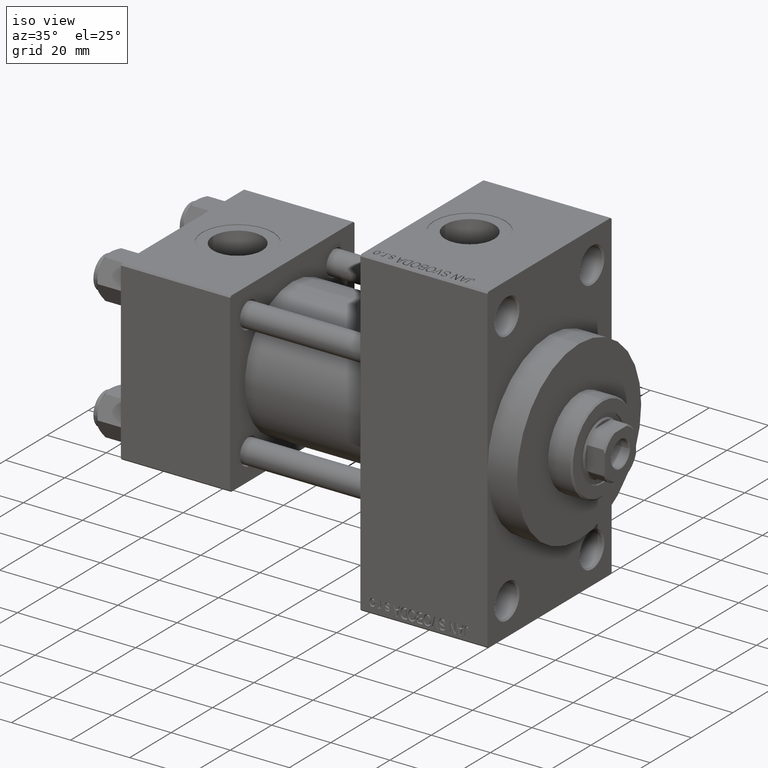
[diagram: clean part render]
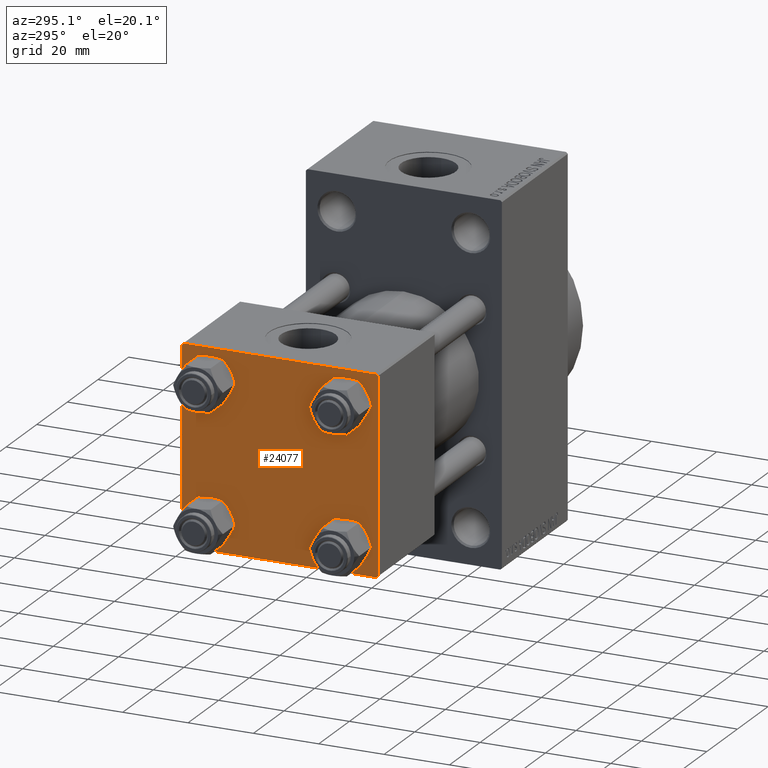
[diagram: tour spotlight — one face highlighted and labeled with its STEP entity id]
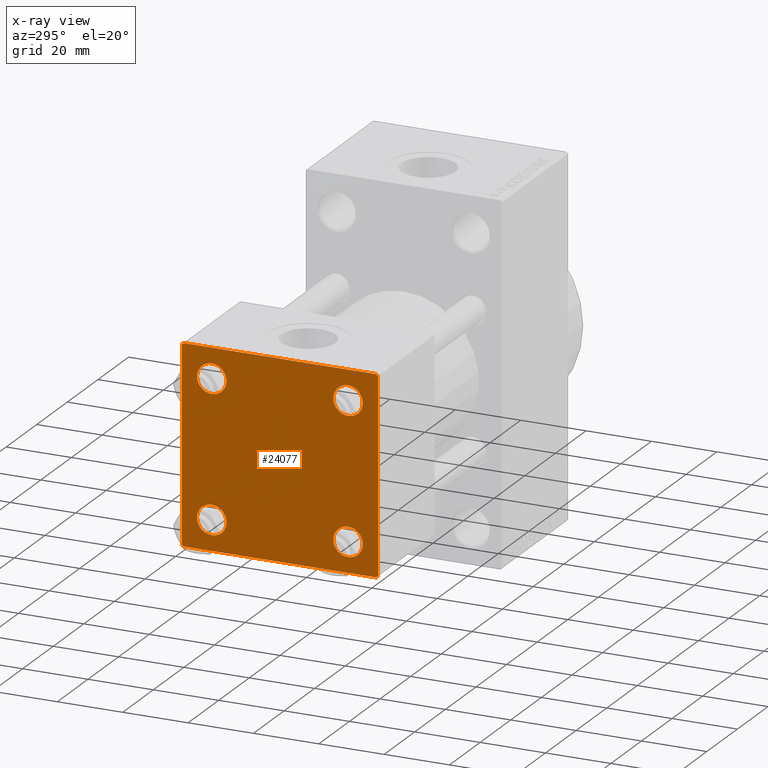
[diagram: x-ray of the same camera — body ghosted, this tour face saturated]
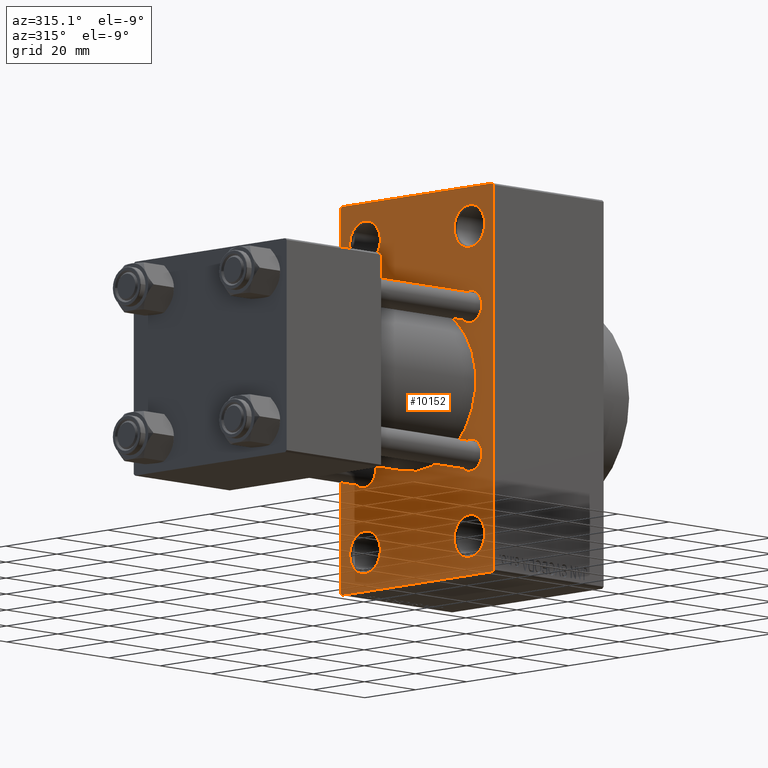
[diagram: tour spotlight — one face highlighted and labeled with its STEP entity id]
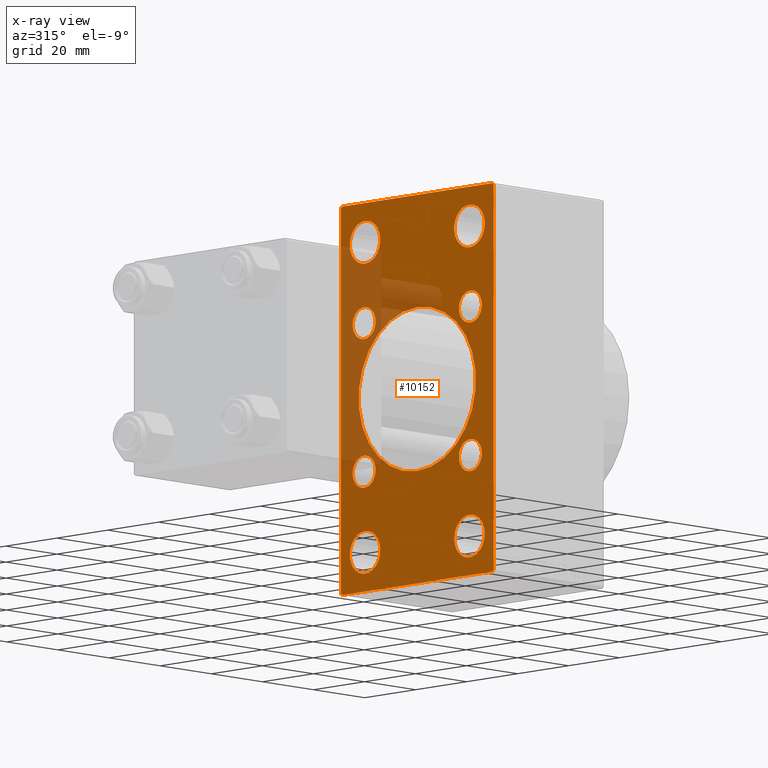
[diagram: x-ray of the same camera — body ghosted, this tour face saturated]
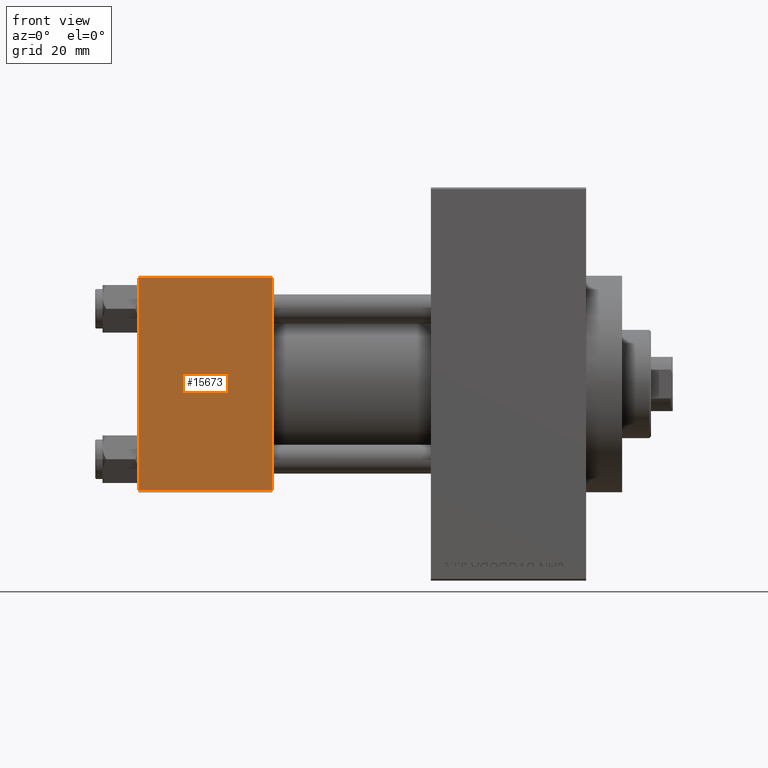
[diagram: tour spotlight — one face highlighted and labeled with its STEP entity id]
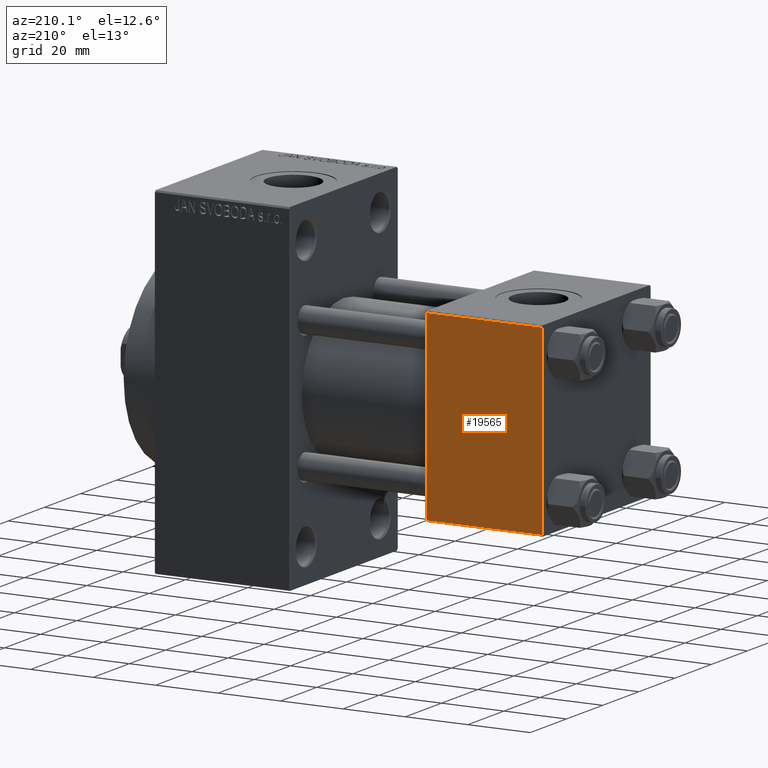
[diagram: tour spotlight — one face highlighted and labeled with its STEP entity id]
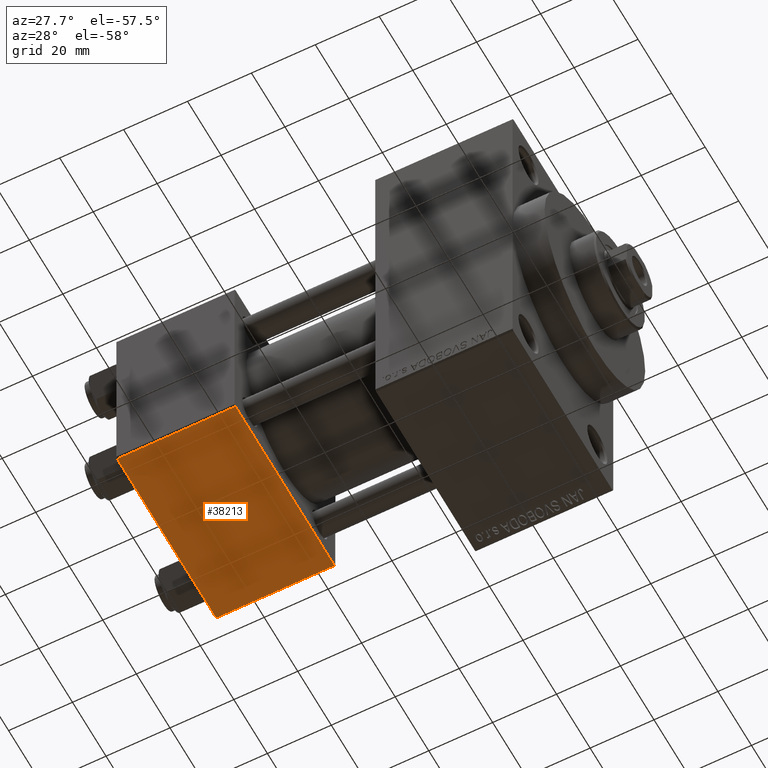
[diagram: tour spotlight — one face highlighted and labeled with its STEP entity id]
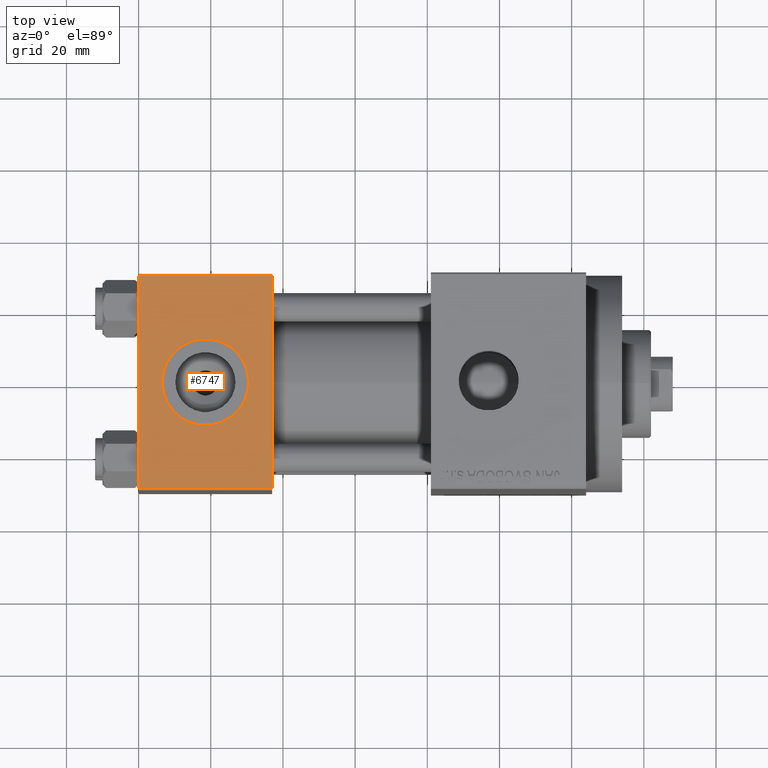
[diagram: tour spotlight — one face highlighted and labeled with its STEP entity id]
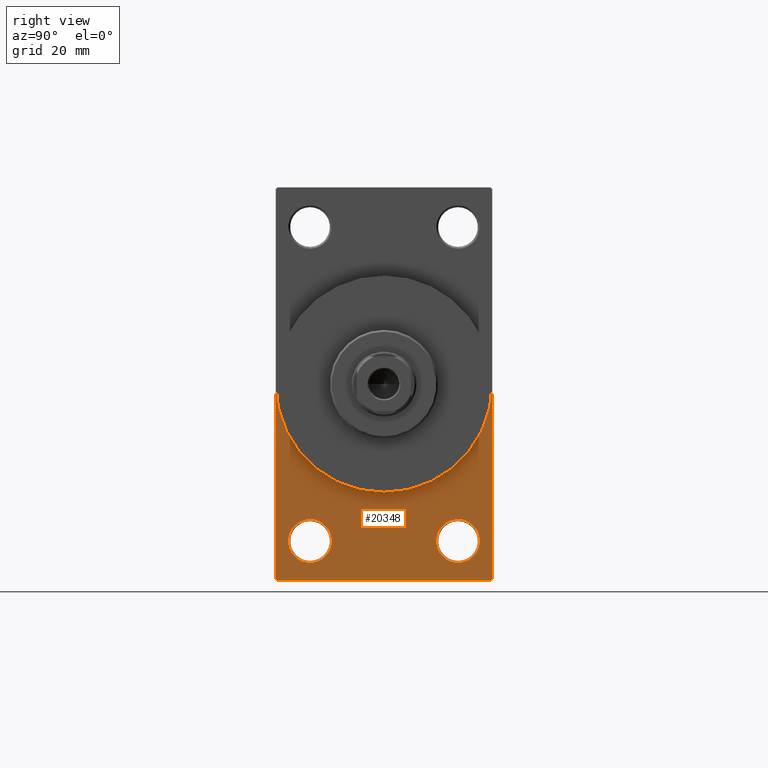
[diagram: tour spotlight — one face highlighted and labeled with its STEP entity id]
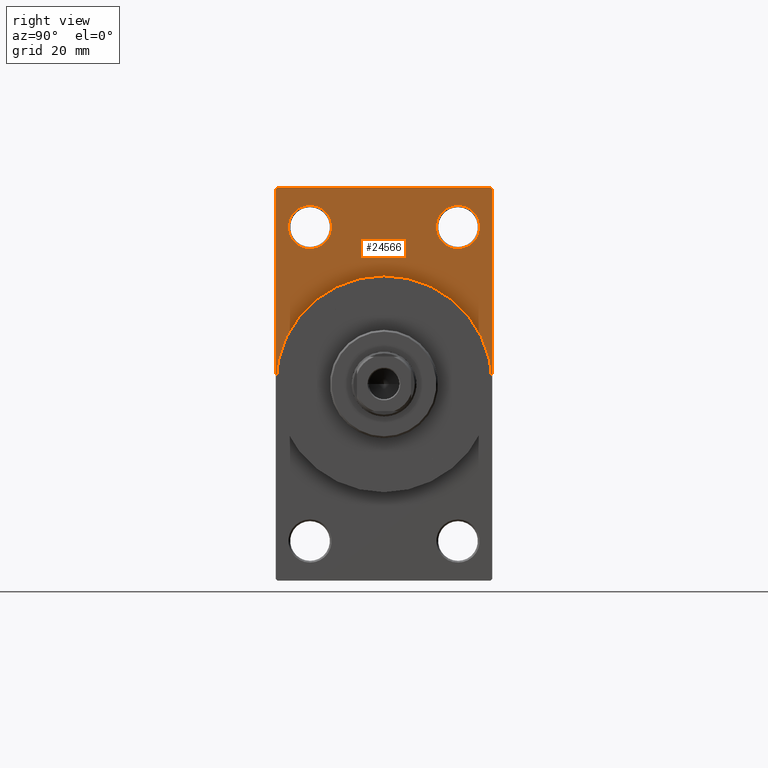
[diagram: tour spotlight — one face highlighted and labeled with its STEP entity id]
A machine part: a face-by-face anatomy tour. The part has 1104 B-rep faces; the first image is the clean iso view, then the 8 largest visible faces are spotlighted one at a time (largest first), each with its STEP entity span.

Face 1 — auxiliary view, entity #24077. An x-ray twin of the same camera follows (body ghosted, this face saturated) — the face is partly hidden behind the body. In plain terms, the highlighted planar face has unit normal (-1, 0, 0).
Definition (entity closure, byte-faithful):
#791 = CARTESIAN_POINT ( 'NONE',  ( 0.000000000000000000, -30.00000000000000000, 29.49999999999999289 ) ) ;
#2116 = FACE_BOUND ( 'NONE', #12589, .T. ) ;
#2265 = VERTEX_POINT ( 'NONE', #31009 ) ;
#2739 = CARTESIAN_POINT ( 'NONE',  ( 0.000000000000000000, -29.75000000000001066, -29.75000000000001066 ) ) ;
#3314 = CARTESIAN_POINT ( 'NONE',  ( 0.000000000000000000, -20.84999999999999076, 20.85000000000000497 ) ) ;
#3444 = CIRCLE ( 'NONE', #18720, 4.500000000000017764 ) ;
#3460 = VERTEX_POINT ( 'NONE', #42443 ) ;
#3965 = CARTESIAN_POINT ( 'NONE',  ( 0.000000000000000000, 29.74999999999999645, 29.74999999999999645 ) ) ;
#4051 = EDGE_LOOP ( 'NONE', ( #4161, #13234 ) ) ;
#4161 = ORIENTED_EDGE ( 'NONE', *, *, #12864, .T. ) ;
#4185 = CARTESIAN_POINT ( 'NONE',  ( 0.000000000000000000, -20.84999999999999076, -16.34999999999998721 ) ) ;
#4251 = LINE ( 'NONE', #33406, #30294 ) ;
#5616 = EDGE_CURVE ( 'NONE', #15385, #31555, #14376, .T. ) ;
#5699 = FACE_BOUND ( 'NONE', #31044, .T. ) ;
#6887 = AXIS2_PLACEMENT_3D ( 'NONE', #16345, #20170, #13468 ) ;
#7057 = EDGE_CURVE ( 'NONE', #26156, #14781, #21432, .T. ) ;
#7194 = CARTESIAN_POINT ( 'NONE',  ( 0.000000000000000000, 29.49999999999999289, 30.00000000000000000 ) ) ;
#7985 = AXIS2_PLACEMENT_3D ( 'NONE', #31692, #39113, #20942 ) ;
#8145 = PLANE ( 'NONE',  #31137 ) ;
#8565 = EDGE_LOOP ( 'NONE', ( #29030, #10646, #21338, #38111, #33662, #44987, #46584, #9451 ) ) ;
#9451 = ORIENTED_EDGE ( 'NONE', *, *, #36251, .T. ) ;
#9663 = DIRECTION ( 'NONE',  ( -0.000000000000000000, -0.7071067811865574537, -0.7071067811865376918 ) ) ;
#9914 = VECTOR ( 'NONE', #43575, 1000.000000000000114 ) ;
#10646 = ORIENTED_EDGE ( 'NONE', *, *, #13374, .T. ) ;
#10839 = DIRECTION ( 'NONE',  ( 0.000000000000000000, 0.000000000000000000, 1.000000000000000000 ) ) ;
#11064 = VECTOR ( 'NONE', #22436, 1000.000000000000000 ) ;
#11633 = EDGE_CURVE ( 'NONE', #13691, #14781, #43303, .T. ) ;
#11816 = VECTOR ( 'NONE', #9663, 999.9999999999998863 ) ;
#12331 = AXIS2_PLACEMENT_3D ( 'NONE', #21962, #40124, #43691 ) ;
#12543 = VECTOR ( 'NONE', #14138, 1000.000000000000114 ) ;
#12589 = EDGE_LOOP ( 'NONE', ( #39506, #39267 ) ) ;
#12864 = EDGE_CURVE ( 'NONE', #40205, #44012, #41566, .T. ) ;
#12869 = CARTESIAN_POINT ( 'NONE',  ( 0.000000000000000000, 0.000000000000000000, 0.000000000000000000 ) ) ;
#13165 = VERTEX_POINT ( 'NONE', #18992 ) ;
#13234 = ORIENTED_EDGE ( 'NONE', *, *, #32998, .T. ) ;
#13374 = EDGE_CURVE ( 'NONE', #13165, #2265, #45969, .T. ) ;
#13468 = DIRECTION ( 'NONE',  ( 0.000000000000000000, 0.000000000000000000, 1.000000000000000000 ) ) ;
#13691 = VERTEX_POINT ( 'NONE', #791 ) ;
#13944 = EDGE_CURVE ( 'NONE', #37663, #13165, #40614, .T. ) ;
#14055 = DIRECTION ( 'NONE',  ( 0.000000000000000000, 0.000000000000000000, 1.000000000000000000 ) ) ;
#14138 = DIRECTION ( 'NONE',  ( -0.000000000000000000, 0.7071067811865474617, 0.7071067811865474617 ) ) ;
#14376 = CIRCLE ( 'NONE', #18167, 4.500000000000017764 ) ;
#14709 = DIRECTION ( 'NONE',  ( 0.000000000000000000, 0.7071067811865474617, -0.7071067811865474617 ) ) ;
#14781 = VERTEX_POINT ( 'NONE', #33196 ) ;
#15385 = VERTEX_POINT ( 'NONE', #22990 ) ;
#15845 = CARTESIAN_POINT ( 'NONE',  ( 0.000000000000000000, 29.99999999999999289, 29.50000000000000000 ) ) ;
#15973 = AXIS2_PLACEMENT_3D ( 'NONE', #37099, #40235, #10839 ) ;
#16079 = EDGE_CURVE ( 'NONE', #31555, #15385, #28595, .T. ) ;
#16345 = CARTESIAN_POINT ( 'NONE',  ( 0.000000000000000000, 20.84999999999999787, -20.85000000000000142 ) ) ;
#16587 = ORIENTED_EDGE ( 'NONE', *, *, #35559, .T. ) ;
#17107 = VERTEX_POINT ( 'NONE', #19073 ) ;
#17398 = VECTOR ( 'NONE', #21572, 1000.000000000000000 ) ;
#17595 = CARTESIAN_POINT ( 'NONE',  ( 0.000000000000000000, -20.84999999999999076, 25.35000000000002274 ) ) ;
#17881 = DIRECTION ( 'NONE',  ( 1.000000000000000000, -0.000000000000000000, 0.000000000000000000 ) ) ;
#18167 = AXIS2_PLACEMENT_3D ( 'NONE', #3314, #17881, #14055 ) ;
#18366 = DIRECTION ( 'NONE',  ( 0.000000000000000000, 0.000000000000000000, -1.000000000000000000 ) ) ;
#18720 = AXIS2_PLACEMENT_3D ( 'NONE', #20912, #28317, #24511 ) ;
#18992 = CARTESIAN_POINT ( 'NONE',  ( 0.000000000000000000, 29.99999999999999289, -29.50000000000000000 ) ) ;
#19073 = CARTESIAN_POINT ( 'NONE',  ( 0.000000000000000000, -30.00000000000000000, -29.50000000000001776 ) ) ;
#20170 = DIRECTION ( 'NONE',  ( 1.000000000000000000, -0.000000000000000000, 0.000000000000000000 ) ) ;
#20528 = CARTESIAN_POINT ( 'NONE',  ( 0.000000000000000000, -20.84999999999999076, -20.85000000000000497 ) ) ;
#20912 = CARTESIAN_POINT ( 'NONE',  ( 0.000000000000000000, -20.84999999999999076, -20.85000000000000497 ) ) ;
#20942 = DIRECTION ( 'NONE',  ( 0.000000000000000000, 0.000000000000000000, 1.000000000000000000 ) ) ;
#21146 = LINE ( 'NONE', #2739, #9914 ) ;
#21338 = ORIENTED_EDGE ( 'NONE', *, *, #24767, .T. ) ;
#21432 = LINE ( 'NONE', #28581, #29662 ) ;
#21572 = DIRECTION ( 'NONE',  ( 0.000000000000000000, -1.000000000000000000, -1.156482317317871725E-16 ) ) ;
#21962 = CARTESIAN_POINT ( 'NONE',  ( 0.000000000000000000, 20.84999999999999787, 20.85000000000000142 ) ) ;
#22216 = CARTESIAN_POINT ( 'NONE',  ( 0.000000000000000000, 29.99999999999999289, 30.00000000000000000 ) ) ;
#22363 = LINE ( 'NONE', #3965, #27621 ) ;
#22436 = DIRECTION ( 'NONE',  ( 0.000000000000000000, 0.000000000000000000, -1.000000000000000000 ) ) ;
#22990 = CARTESIAN_POINT ( 'NONE',  ( 0.000000000000000000, -20.84999999999999076, 16.34999999999998721 ) ) ;
#23209 = EDGE_CURVE ( 'NONE', #13691, #17107, #4251, .T. ) ;
#24077 = ADVANCED_FACE ( 'NONE', ( #5699, #2116, #40655, #37296, #31023 ), #8145, .T. ) ;
#24465 = VERTEX_POINT ( 'NONE', #24523 ) ;
#24511 = DIRECTION ( 'NONE',  ( 0.000000000000000000, 0.000000000000000000, 1.000000000000000000 ) ) ;
#24523 = CARTESIAN_POINT ( 'NONE',  ( 0.000000000000000000, 20.84999999999999787, 16.34999999999998366 ) ) ;
#24702 = CARTESIAN_POINT ( 'NONE',  ( 0.000000000000000000, 29.74999999999957723, -29.75000000000040501 ) ) ;
#24767 = EDGE_CURVE ( 'NONE', #2265, #42726, #30083, .T. ) ;
#24922 = EDGE_CURVE ( 'NONE', #33304, #40252, #34977, .T. ) ;
#26044 = CARTESIAN_POINT ( 'NONE',  ( 0.000000000000000000, -20.84999999999999076, -25.35000000000002274 ) ) ;
#26156 = VERTEX_POINT ( 'NONE', #7194 ) ;
#27337 = ORIENTED_EDGE ( 'NONE', *, *, #5616, .T. ) ;
#27621 = VECTOR ( 'NONE', #14709, 1000.000000000000114 ) ;
#27624 = CARTESIAN_POINT ( 'NONE',  ( 0.000000000000000000, -29.50000000000000000, -30.00000000000000711 ) ) ;
#28164 = CARTESIAN_POINT ( 'NONE',  ( 0.000000000000000000, 20.84999999999999787, -20.85000000000000142 ) ) ;
#28176 = EDGE_CURVE ( 'NONE', #42726, #17107, #21146, .T. ) ;
#28317 = DIRECTION ( 'NONE',  ( 1.000000000000000000, -0.000000000000000000, 0.000000000000000000 ) ) ;
#28581 = CARTESIAN_POINT ( 'NONE',  ( 0.000000000000000000, 29.99999999999999289, 30.00000000000000000 ) ) ;
#28595 = CIRCLE ( 'NONE', #7985, 4.500000000000017764 ) ;
#28822 = DIRECTION ( 'NONE',  ( 0.000000000000000000, -1.000000000000000000, -1.156482317317871725E-16 ) ) ;
#29030 = ORIENTED_EDGE ( 'NONE', *, *, #13944, .T. ) ;
#29662 = VECTOR ( 'NONE', #28822, 1000.000000000000000 ) ;
#29745 = CIRCLE ( 'NONE', #6887, 4.500000000000017764 ) ;
#30083 = LINE ( 'NONE', #44411, #17398 ) ;
#30294 = VECTOR ( 'NONE', #18366, 1000.000000000000000 ) ;
#31009 = CARTESIAN_POINT ( 'NONE',  ( 0.000000000000000000, 29.49999999999997868, -30.00000000000000000 ) ) ;
#31023 = FACE_OUTER_BOUND ( 'NONE', #8565, .T. ) ;
#31044 = EDGE_LOOP ( 'NONE', ( #31083, #27337 ) ) ;
#31083 = ORIENTED_EDGE ( 'NONE', *, *, #16079, .T. ) ;
#31137 = AXIS2_PLACEMENT_3D ( 'NONE', #12869, #33471, #31262 ) ;
#31262 = DIRECTION ( 'NONE',  ( -0.000000000000000000, 0.000000000000000000, 1.000000000000000000 ) ) ;
#31555 = VERTEX_POINT ( 'NONE', #17595 ) ;
#31612 = CARTESIAN_POINT ( 'NONE',  ( -0.000000000000000000, -29.74999999999999645, 29.74999999999999645 ) ) ;
#31692 = CARTESIAN_POINT ( 'NONE',  ( 0.000000000000000000, -20.84999999999999076, 20.85000000000000497 ) ) ;
#31934 = EDGE_CURVE ( 'NONE', #3460, #24465, #41939, .T. ) ;
#32688 = AXIS2_PLACEMENT_3D ( 'NONE', #20528, #42504, #45359 ) ;
#32911 = CIRCLE ( 'NONE', #12331, 4.500000000000017764 ) ;
#32998 = EDGE_CURVE ( 'NONE', #44012, #40205, #29745, .T. ) ;
#33196 = CARTESIAN_POINT ( 'NONE',  ( 0.000000000000000000, -29.49999999999998579, 29.99999999999999289 ) ) ;
#33304 = VERTEX_POINT ( 'NONE', #26044 ) ;
#33406 = CARTESIAN_POINT ( 'NONE',  ( 0.000000000000000000, -30.00000000000000000, 29.99999999999999289 ) ) ;
#33471 = DIRECTION ( 'NONE',  ( -1.000000000000000000, 0.000000000000000000, -0.000000000000000000 ) ) ;
#33662 = ORIENTED_EDGE ( 'NONE', *, *, #23209, .F. ) ;
#34977 = CIRCLE ( 'NONE', #32688, 4.500000000000017764 ) ;
#35516 = CARTESIAN_POINT ( 'NONE',  ( 0.000000000000000000, 20.84999999999999787, -16.34999999999998366 ) ) ;
#35559 = EDGE_CURVE ( 'NONE', #24465, #3460, #32911, .T. ) ;
#36130 = CARTESIAN_POINT ( 'NONE',  ( 0.000000000000000000, 20.84999999999999787, -25.35000000000001918 ) ) ;
#36251 = EDGE_CURVE ( 'NONE', #26156, #37663, #22363, .T. ) ;
#36751 = DIRECTION ( 'NONE',  ( 0.000000000000000000, 0.000000000000000000, 1.000000000000000000 ) ) ;
#37099 = CARTESIAN_POINT ( 'NONE',  ( 0.000000000000000000, 20.84999999999999787, 20.85000000000000142 ) ) ;
#37296 = FACE_BOUND ( 'NONE', #41075, .T. ) ;
#37663 = VERTEX_POINT ( 'NONE', #15845 ) ;
#38111 = ORIENTED_EDGE ( 'NONE', *, *, #28176, .T. ) ;
#39113 = DIRECTION ( 'NONE',  ( 1.000000000000000000, -0.000000000000000000, 0.000000000000000000 ) ) ;
#39267 = ORIENTED_EDGE ( 'NONE', *, *, #24922, .T. ) ;
#39506 = ORIENTED_EDGE ( 'NONE', *, *, #43465, .T. ) ;
#40105 = ORIENTED_EDGE ( 'NONE', *, *, #31934, .T. ) ;
#40124 = DIRECTION ( 'NONE',  ( 1.000000000000000000, -0.000000000000000000, 0.000000000000000000 ) ) ;
#40205 = VERTEX_POINT ( 'NONE', #35516 ) ;
#40235 = DIRECTION ( 'NONE',  ( 1.000000000000000000, -0.000000000000000000, 0.000000000000000000 ) ) ;
#40252 = VERTEX_POINT ( 'NONE', #4185 ) ;
#40614 = LINE ( 'NONE', #22216, #11064 ) ;
#40655 = FACE_BOUND ( 'NONE', #4051, .T. ) ;
#41075 = EDGE_LOOP ( 'NONE', ( #40105, #16587 ) ) ;
#41566 = CIRCLE ( 'NONE', #46116, 4.500000000000017764 ) ;
#41939 = CIRCLE ( 'NONE', #15973, 4.500000000000017764 ) ;
#42443 = CARTESIAN_POINT ( 'NONE',  ( 0.000000000000000000, 20.84999999999999787, 25.35000000000001918 ) ) ;
#42504 = DIRECTION ( 'NONE',  ( 1.000000000000000000, -0.000000000000000000, 0.000000000000000000 ) ) ;
#42726 = VERTEX_POINT ( 'NONE', #27624 ) ;
#43303 = LINE ( 'NONE', #31612, #12543 ) ;
#43465 = EDGE_CURVE ( 'NONE', #40252, #33304, #3444, .T. ) ;
#43575 = DIRECTION ( 'NONE',  ( 0.000000000000000000, -0.7071067811865474617, 0.7071067811865474617 ) ) ;
#43691 = DIRECTION ( 'NONE',  ( 0.000000000000000000, 0.000000000000000000, 1.000000000000000000 ) ) ;
#44012 = VERTEX_POINT ( 'NONE', #36130 ) ;
#44411 = CARTESIAN_POINT ( 'NONE',  ( 0.000000000000000000, 29.99999999999999289, -30.00000000000000000 ) ) ;
#44987 = ORIENTED_EDGE ( 'NONE', *, *, #11633, .T. ) ;
#45359 = DIRECTION ( 'NONE',  ( 0.000000000000000000, 0.000000000000000000, 1.000000000000000000 ) ) ;
#45969 = LINE ( 'NONE', #24702, #11816 ) ;
#46116 = AXIS2_PLACEMENT_3D ( 'NONE', #28164, #47002, #36751 ) ;
#46584 = ORIENTED_EDGE ( 'NONE', *, *, #7057, .F. ) ;
#47002 = DIRECTION ( 'NONE',  ( 1.000000000000000000, -0.000000000000000000, 0.000000000000000000 ) ) ;

Face 2 — auxiliary view, entity #10152. An x-ray twin of the same camera follows (body ghosted, this face saturated) — the face is partly hidden behind the body. In plain terms, the highlighted planar face has unit normal (-1, 0, 0).
Definition (entity closure, byte-faithful):
#157 = LINE ( 'NONE', #7571, #44838 ) ;
#190 = CARTESIAN_POINT ( 'NONE',  ( 80.99999999999998579, -20.50000000000000000, -49.49999999999993605 ) ) ;
#400 = AXIS2_PLACEMENT_3D ( 'NONE', #6450, #25315, #25546 ) ;
#582 = AXIS2_PLACEMENT_3D ( 'NONE', #30390, #29918, #22993 ) ;
#586 = VERTEX_POINT ( 'NONE', #22992 ) ;
#596 = VERTEX_POINT ( 'NONE', #5554 ) ;
#649 = CIRCLE ( 'NONE', #22784, 5.999999999999936051 ) ;
#904 = CARTESIAN_POINT ( 'NONE',  ( 80.99999999999998579, 29.49999999999996803, -54.49999999999999289 ) ) ;
#1481 = VERTEX_POINT ( 'NONE', #26819 ) ;
#1692 = DIRECTION ( 'NONE',  ( 1.000000000000000000, -0.000000000000000000, 0.000000000000000000 ) ) ;
#2530 = DIRECTION ( 'NONE',  ( 1.000000000000000000, -0.000000000000000000, 0.000000000000000000 ) ) ;
#2546 = VERTEX_POINT ( 'NONE', #30139 ) ;
#2576 = CARTESIAN_POINT ( 'NONE',  ( 80.99999999999998579, -20.50000000000000000, 49.49999999999993605 ) ) ;
#3066 = EDGE_CURVE ( 'NONE', #18402, #10871, #44009, .T. ) ;
#3479 = CARTESIAN_POINT ( 'NONE',  ( 80.99999999999998579, 20.84999999999999787, -20.85000000000000142 ) ) ;
#3752 = ORIENTED_EDGE ( 'NONE', *, *, #44571, .T. ) ;
#3982 = EDGE_CURVE ( 'NONE', #39732, #22050, #9727, .T. ) ;
#4040 = CARTESIAN_POINT ( 'NONE',  ( 80.99999999999998579, 20.50000000000000000, 43.50000000000000000 ) ) ;
#4099 = LINE ( 'NONE', #33257, #26721 ) ;
#4517 = VERTEX_POINT ( 'NONE', #18357 ) ;
#4729 = EDGE_CURVE ( 'NONE', #10871, #34081, #27362, .T. ) ;
#4873 = AXIS2_PLACEMENT_3D ( 'NONE', #10488, #21252, #40113 ) ;
#5243 = ORIENTED_EDGE ( 'NONE', *, *, #31601, .T. ) ;
#5554 = CARTESIAN_POINT ( 'NONE',  ( 80.99999999999998579, -20.84999999999999076, 25.35000000000001208 ) ) ;
#5704 = CIRCLE ( 'NONE', #14800, 5.999999999999936051 ) ;
#5997 = VERTEX_POINT ( 'NONE', #37136 ) ;
#6162 = CARTESIAN_POINT ( 'NONE',  ( 80.99999999999998579, -20.84999999999999076, 20.85000000000000497 ) ) ;
#6359 = EDGE_CURVE ( 'NONE', #30197, #19580, #649, .T. ) ;
#6450 = CARTESIAN_POINT ( 'NONE',  ( 80.99999999999998579, -20.84999999999999076, 20.85000000000000497 ) ) ;
#6620 = ORIENTED_EDGE ( 'NONE', *, *, #32429, .T. ) ;
#6901 = DIRECTION ( 'NONE',  ( 0.000000000000000000, 0.000000000000000000, -1.000000000000000000 ) ) ;
#7466 = AXIS2_PLACEMENT_3D ( 'NONE', #14418, #29000, #43573 ) ;
#7571 = CARTESIAN_POINT ( 'NONE',  ( 80.99999999999998579, -42.00000000000051159, -41.99999999999905498 ) ) ;
#7635 = EDGE_CURVE ( 'NONE', #44951, #36316, #19745, .T. ) ;
#7779 = CARTESIAN_POINT ( 'NONE',  ( 80.99999999999998579, -2.602085213965210642E-15, 23.00000000000000000 ) ) ;
#9090 = CARTESIAN_POINT ( 'NONE',  ( 80.99999999999998579, 20.50000000000000000, -37.50000000000006395 ) ) ;
#9320 = DIRECTION ( 'NONE',  ( 1.000000000000000000, -0.000000000000000000, 0.000000000000000000 ) ) ;
#9570 = VECTOR ( 'NONE', #41660, 1000.000000000000000 ) ;
#9655 = PLANE ( 'NONE',  #32838 ) ;
#9727 = CIRCLE ( 'NONE', #582, 4.500000000000007105 ) ;
#9825 = ORIENTED_EDGE ( 'NONE', *, *, #15034, .T. ) ;
#10091 = EDGE_CURVE ( 'NONE', #29788, #14611, #19454, .T. ) ;
#10152 = ADVANCED_FACE ( 'NONE', ( #42156, #24001, #12529, #42384, #34280, #16115, #30690, #12775, #27104, #41680 ), #9655, .T. ) ;
#10453 = VERTEX_POINT ( 'NONE', #31349 ) ;
#10471 = DIRECTION ( 'NONE',  ( 1.000000000000000000, 0.000000000000000000, 0.000000000000000000 ) ) ;
#10488 = CARTESIAN_POINT ( 'NONE',  ( 80.99999999999998579, -20.50000000000000000, 43.50000000000000000 ) ) ;
#10714 = DIRECTION ( 'NONE',  ( 0.000000000000000000, 0.000000000000000000, 1.000000000000000000 ) ) ;
#10784 = LINE ( 'NONE', #25360, #37953 ) ;
#10871 = VERTEX_POINT ( 'NONE', #904 ) ;
#11973 = EDGE_CURVE ( 'NONE', #5997, #586, #5704, .T. ) ;
#11998 = DIRECTION ( 'NONE',  ( -0.000000000000000000, -0.7071067811865474617, -0.7071067811865474617 ) ) ;
#12039 = VECTOR ( 'NONE', #31180, 1000.000000000000000 ) ;
#12066 = CARTESIAN_POINT ( 'NONE',  ( 80.99999999999998579, -42.00000000000008527, 41.99999999999979394 ) ) ;
#12509 = EDGE_LOOP ( 'NONE', ( #21507, #40500 ) ) ;
#12529 = FACE_BOUND ( 'NONE', #21240, .T. ) ;
#12775 = FACE_BOUND ( 'NONE', #12509, .T. ) ;
#13016 = CARTESIAN_POINT ( 'NONE',  ( 80.99999999999998579, 42.00000000000082423, 41.99999999999849365 ) ) ;
#13309 = DIRECTION ( 'NONE',  ( 0.000000000000000000, 0.000000000000000000, 1.000000000000000000 ) ) ;
#13546 = EDGE_CURVE ( 'NONE', #19580, #30197, #14874, .T. ) ;
#13559 = CIRCLE ( 'NONE', #7466, 5.999999999999936051 ) ;
#13930 = CARTESIAN_POINT ( 'NONE',  ( 80.99999999999998579, -20.84999999999999076, -16.34999999999999787 ) ) ;
#14068 = CARTESIAN_POINT ( 'NONE',  ( 80.99999999999998579, 20.50000000000000000, 43.50000000000000000 ) ) ;
#14229 = DIRECTION ( 'NONE',  ( 0.000000000000000000, 0.000000000000000000, 1.000000000000000000 ) ) ;
#14381 = ORIENTED_EDGE ( 'NONE', *, *, #6359, .T. ) ;
#14418 = CARTESIAN_POINT ( 'NONE',  ( 80.99999999999998579, 20.50000000000000000, -43.50000000000000000 ) ) ;
#14611 = VERTEX_POINT ( 'NONE', #42318 ) ;
#14714 = DIRECTION ( 'NONE',  ( 1.000000000000000000, 0.000000000000000000, 0.000000000000000000 ) ) ;
#14800 = AXIS2_PLACEMENT_3D ( 'NONE', #4040, #17910, #40618 ) ;
#14871 = CIRCLE ( 'NONE', #400, 4.500000000000007105 ) ;
#14874 = CIRCLE ( 'NONE', #17172, 5.999999999999936051 ) ;
#14982 = DIRECTION ( 'NONE',  ( 1.000000000000000000, -0.000000000000000000, 0.000000000000000000 ) ) ;
#15034 = EDGE_CURVE ( 'NONE', #36316, #44951, #33235, .T. ) ;
#15220 = DIRECTION ( 'NONE',  ( 0.000000000000000000, 0.000000000000000000, 1.000000000000000000 ) ) ;
#15559 = ORIENTED_EDGE ( 'NONE', *, *, #3066, .T. ) ;
#15689 = AXIS2_PLACEMENT_3D ( 'NONE', #14068, #39663, #28650 ) ;
#15778 = CARTESIAN_POINT ( 'NONE',  ( 80.99999999999998579, 20.84999999999999787, 25.35000000000000853 ) ) ;
#15881 = LINE ( 'NONE', #12066, #20916 ) ;
#15919 = EDGE_LOOP ( 'NONE', ( #33988, #28843 ) ) ;
#15920 = AXIS2_PLACEMENT_3D ( 'NONE', #18317, #14714, #46516 ) ;
#15932 = ORIENTED_EDGE ( 'NONE', *, *, #43721, .F. ) ;
#16115 = FACE_BOUND ( 'NONE', #33833, .T. ) ;
#16717 = ORIENTED_EDGE ( 'NONE', *, *, #23755, .T. ) ;
#16928 = ORIENTED_EDGE ( 'NONE', *, *, #27839, .T. ) ;
#17143 = EDGE_LOOP ( 'NONE', ( #41435, #32212 ) ) ;
#17172 = AXIS2_PLACEMENT_3D ( 'NONE', #36865, #18931, #34230 ) ;
#17220 = AXIS2_PLACEMENT_3D ( 'NONE', #40341, #14982, #10714 ) ;
#17827 = EDGE_CURVE ( 'NONE', #2546, #596, #14871, .T. ) ;
#17847 = EDGE_CURVE ( 'NONE', #10453, #29555, #42349, .T. ) ;
#17910 = DIRECTION ( 'NONE',  ( 1.000000000000000000, -0.000000000000000000, 0.000000000000000000 ) ) ;
#18310 = DIRECTION ( 'NONE',  ( 0.000000000000000000, -0.7071067811865352493, 0.7071067811865597852 ) ) ;
#18317 = CARTESIAN_POINT ( 'NONE',  ( 80.99999999999998579, -2.602085213965210642E-15, 0.000000000000000000 ) ) ;
#18357 = CARTESIAN_POINT ( 'NONE',  ( 80.99999999999998579, -20.50000000000000000, 37.50000000000006395 ) ) ;
#18402 = VERTEX_POINT ( 'NONE', #37123 ) ;
#18931 = DIRECTION ( 'NONE',  ( 1.000000000000000000, -0.000000000000000000, 0.000000000000000000 ) ) ;
#19077 = AXIS2_PLACEMENT_3D ( 'NONE', #22715, #1692, #37282 ) ;
#19454 = LINE ( 'NONE', #13016, #42729 ) ;
#19568 = EDGE_LOOP ( 'NONE', ( #30903, #14381 ) ) ;
#19580 = VERTEX_POINT ( 'NONE', #19973 ) ;
#19745 = CIRCLE ( 'NONE', #15920, 23.00000000000000000 ) ;
#19942 = CARTESIAN_POINT ( 'NONE',  ( 80.99999999999998579, 0.000000000000000000, 0.000000000000000000 ) ) ;
#19973 = CARTESIAN_POINT ( 'NONE',  ( 80.99999999999998579, -20.50000000000000000, -37.50000000000006395 ) ) ;
#20132 = EDGE_CURVE ( 'NONE', #586, #5997, #36304, .T. ) ;
#20539 = CARTESIAN_POINT ( 'NONE',  ( 80.99999999999998579, -20.50000000000000000, 43.50000000000000000 ) ) ;
#20649 = DIRECTION ( 'NONE',  ( -0.000000000000000000, 0.000000000000000000, 1.000000000000000000 ) ) ;
#20916 = VECTOR ( 'NONE', #41218, 1000.000000000000114 ) ;
#21240 = EDGE_LOOP ( 'NONE', ( #3752, #16717 ) ) ;
#21252 = DIRECTION ( 'NONE',  ( 1.000000000000000000, -0.000000000000000000, 0.000000000000000000 ) ) ;
#21268 = CARTESIAN_POINT ( 'NONE',  ( 80.99999999999998579, 20.84999999999999787, -20.85000000000000142 ) ) ;
#21300 = AXIS2_PLACEMENT_3D ( 'NONE', #20539, #9320, #35114 ) ;
#21507 = ORIENTED_EDGE ( 'NONE', *, *, #3982, .T. ) ;
#21509 = EDGE_CURVE ( 'NONE', #22050, #39732, #31068, .T. ) ;
#21620 = ORIENTED_EDGE ( 'NONE', *, *, #7635, .T. ) ;
#21739 = AXIS2_PLACEMENT_3D ( 'NONE', #21268, #36298, #35829 ) ;
#22050 = VERTEX_POINT ( 'NONE', #45373 ) ;
#22424 = VERTEX_POINT ( 'NONE', #28122 ) ;
#22601 = CARTESIAN_POINT ( 'NONE',  ( 80.99999999999998579, 2.146024240737016609E-16, -23.00000000000000000 ) ) ;
#22715 = CARTESIAN_POINT ( 'NONE',  ( 80.99999999999998579, 20.84999999999999787, 20.85000000000000142 ) ) ;
#22754 = EDGE_CURVE ( 'NONE', #14611, #18402, #10784, .T. ) ;
#22784 = AXIS2_PLACEMENT_3D ( 'NONE', #39583, #28812, #14229 ) ;
#22912 = VERTEX_POINT ( 'NONE', #9090 ) ;
#22992 = CARTESIAN_POINT ( 'NONE',  ( 80.99999999999998579, 20.50000000000000000, 37.50000000000006395 ) ) ;
#22993 = DIRECTION ( 'NONE',  ( 0.000000000000000000, 0.000000000000000000, 1.000000000000000000 ) ) ;
#23524 = EDGE_CURVE ( 'NONE', #34081, #36601, #157, .T. ) ;
#23755 = EDGE_CURVE ( 'NONE', #1481, #22912, #13559, .T. ) ;
#23970 = CIRCLE ( 'NONE', #4873, 5.999999999999936051 ) ;
#24001 = FACE_BOUND ( 'NONE', #19568, .T. ) ;
#25315 = DIRECTION ( 'NONE',  ( 1.000000000000000000, -0.000000000000000000, 0.000000000000000000 ) ) ;
#25360 = CARTESIAN_POINT ( 'NONE',  ( 80.99999999999998579, 29.99999999999999645, 54.49999999999999289 ) ) ;
#25546 = DIRECTION ( 'NONE',  ( 0.000000000000000000, 0.000000000000000000, 1.000000000000000000 ) ) ;
#25805 = VERTEX_POINT ( 'NONE', #28746 ) ;
#26721 = VECTOR ( 'NONE', #29677, 1000.000000000000000 ) ;
#26735 = ORIENTED_EDGE ( 'NONE', *, *, #23524, .T. ) ;
#26819 = CARTESIAN_POINT ( 'NONE',  ( 80.99999999999998579, 20.50000000000000000, -49.49999999999993605 ) ) ;
#26983 = EDGE_LOOP ( 'NONE', ( #5243, #36555 ) ) ;
#27104 = FACE_BOUND ( 'NONE', #28096, .T. ) ;
#27362 = LINE ( 'NONE', #41932, #12039 ) ;
#27440 = DIRECTION ( 'NONE',  ( 1.000000000000000000, -0.000000000000000000, 0.000000000000000000 ) ) ;
#27592 = DIRECTION ( 'NONE',  ( 0.000000000000000000, 0.7071067811865279218, -0.7071067811865671127 ) ) ;
#27839 = EDGE_CURVE ( 'NONE', #596, #2546, #42683, .T. ) ;
#28032 = ORIENTED_EDGE ( 'NONE', *, *, #30190, .T. ) ;
#28096 = EDGE_LOOP ( 'NONE', ( #21620, #9825 ) ) ;
#28122 = CARTESIAN_POINT ( 'NONE',  ( 80.99999999999998579, -29.49999999999997513, 54.50000000000000000 ) ) ;
#28255 = AXIS2_PLACEMENT_3D ( 'NONE', #32912, #44354, #15220 ) ;
#28650 = DIRECTION ( 'NONE',  ( 0.000000000000000000, 0.000000000000000000, 1.000000000000000000 ) ) ;
#28720 = ORIENTED_EDGE ( 'NONE', *, *, #22754, .T. ) ;
#28746 = CARTESIAN_POINT ( 'NONE',  ( 80.99999999999998579, -30.00000000000000000, 53.99999999999997158 ) ) ;
#28812 = DIRECTION ( 'NONE',  ( 1.000000000000000000, -0.000000000000000000, 0.000000000000000000 ) ) ;
#28843 = ORIENTED_EDGE ( 'NONE', *, *, #39967, .T. ) ;
#29000 = DIRECTION ( 'NONE',  ( 1.000000000000000000, -0.000000000000000000, 0.000000000000000000 ) ) ;
#29555 = VERTEX_POINT ( 'NONE', #38208 ) ;
#29677 = DIRECTION ( 'NONE',  ( 0.000000000000000000, 0.000000000000000000, -1.000000000000000000 ) ) ;
#29728 = ORIENTED_EDGE ( 'NONE', *, *, #39673, .T. ) ;
#29788 = VERTEX_POINT ( 'NONE', #30382 ) ;
#29832 = EDGE_CURVE ( 'NONE', #25805, #36601, #4099, .T. ) ;
#29918 = DIRECTION ( 'NONE',  ( 1.000000000000000000, -0.000000000000000000, 0.000000000000000000 ) ) ;
#29924 = CARTESIAN_POINT ( 'NONE',  ( 80.99999999999998579, -29.50000000000000355, -54.50000000000000000 ) ) ;
#30139 = CARTESIAN_POINT ( 'NONE',  ( 80.99999999999998579, -20.84999999999999076, 16.34999999999999787 ) ) ;
#30190 = EDGE_CURVE ( 'NONE', #43131, #40802, #42749, .T. ) ;
#30197 = VERTEX_POINT ( 'NONE', #190 ) ;
#30382 = CARTESIAN_POINT ( 'NONE',  ( 80.99999999999998579, 29.50000000000002132, 54.49999999999999289 ) ) ;
#30390 = CARTESIAN_POINT ( 'NONE',  ( 80.99999999999998579, -20.84999999999999076, -20.85000000000000497 ) ) ;
#30429 = LINE ( 'NONE', #45227, #9570 ) ;
#30502 = EDGE_LOOP ( 'NONE', ( #34751, #26735, #42900, #29728, #15932, #40972, #28720, #15559 ) ) ;
#30690 = FACE_BOUND ( 'NONE', #26983, .T. ) ;
#30903 = ORIENTED_EDGE ( 'NONE', *, *, #13546, .T. ) ;
#31068 = CIRCLE ( 'NONE', #32588, 4.500000000000007105 ) ;
#31128 = EDGE_CURVE ( 'NONE', #36925, #4517, #44911, .T. ) ;
#31180 = DIRECTION ( 'NONE',  ( 0.000000000000000000, -1.000000000000000000, -1.156482317317871478E-16 ) ) ;
#31255 = DIRECTION ( 'NONE',  ( 0.000000000000000000, 0.000000000000000000, 1.000000000000000000 ) ) ;
#31349 = CARTESIAN_POINT ( 'NONE',  ( 80.99999999999998579, 20.84999999999999787, -25.35000000000000853 ) ) ;
#31601 = EDGE_CURVE ( 'NONE', #29555, #10453, #44195, .T. ) ;
#31773 = CARTESIAN_POINT ( 'NONE',  ( 80.99999999999998579, -30.00000000000000000, -53.99999999999998579 ) ) ;
#32155 = ORIENTED_EDGE ( 'NONE', *, *, #17827, .T. ) ;
#32212 = ORIENTED_EDGE ( 'NONE', *, *, #20132, .T. ) ;
#32371 = CARTESIAN_POINT ( 'NONE',  ( 80.99999999999998579, -20.84999999999999076, -20.85000000000000497 ) ) ;
#32429 = EDGE_CURVE ( 'NONE', #40802, #43131, #46523, .T. ) ;
#32588 = AXIS2_PLACEMENT_3D ( 'NONE', #32371, #2530, #46921 ) ;
#32838 = AXIS2_PLACEMENT_3D ( 'NONE', #19942, #34514, #20649 ) ;
#32912 = CARTESIAN_POINT ( 'NONE',  ( 80.99999999999998579, 20.84999999999999787, 20.85000000000000142 ) ) ;
#33235 = CIRCLE ( 'NONE', #43164, 23.00000000000000000 ) ;
#33257 = CARTESIAN_POINT ( 'NONE',  ( 80.99999999999998579, -30.00000000000000000, 54.50000000000000000 ) ) ;
#33527 = AXIS2_PLACEMENT_3D ( 'NONE', #3479, #46028, #13309 ) ;
#33833 = EDGE_LOOP ( 'NONE', ( #6620, #28032 ) ) ;
#33988 = ORIENTED_EDGE ( 'NONE', *, *, #31128, .T. ) ;
#34081 = VERTEX_POINT ( 'NONE', #29924 ) ;
#34230 = DIRECTION ( 'NONE',  ( 0.000000000000000000, 0.000000000000000000, 1.000000000000000000 ) ) ;
#34280 = FACE_BOUND ( 'NONE', #34556, .T. ) ;
#34514 = DIRECTION ( 'NONE',  ( -1.000000000000000000, 0.000000000000000000, -0.000000000000000000 ) ) ;
#34556 = EDGE_LOOP ( 'NONE', ( #16928, #32155 ) ) ;
#34751 = ORIENTED_EDGE ( 'NONE', *, *, #4729, .T. ) ;
#34854 = CARTESIAN_POINT ( 'NONE',  ( 80.99999999999998579, 20.84999999999999787, 16.34999999999999432 ) ) ;
#34869 = VECTOR ( 'NONE', #11998, 1000.000000000000114 ) ;
#35114 = DIRECTION ( 'NONE',  ( 0.000000000000000000, 0.000000000000000000, 1.000000000000000000 ) ) ;
#35792 = AXIS2_PLACEMENT_3D ( 'NONE', #6162, #27440, #31255 ) ;
#35829 = DIRECTION ( 'NONE',  ( 0.000000000000000000, 0.000000000000000000, 1.000000000000000000 ) ) ;
#36298 = DIRECTION ( 'NONE',  ( 1.000000000000000000, -0.000000000000000000, 0.000000000000000000 ) ) ;
#36304 = CIRCLE ( 'NONE', #15689, 5.999999999999936051 ) ;
#36316 = VERTEX_POINT ( 'NONE', #22601 ) ;
#36555 = ORIENTED_EDGE ( 'NONE', *, *, #17847, .T. ) ;
#36601 = VERTEX_POINT ( 'NONE', #31773 ) ;
#36865 = CARTESIAN_POINT ( 'NONE',  ( 80.99999999999998579, -20.50000000000000000, -43.50000000000000000 ) ) ;
#36925 = VERTEX_POINT ( 'NONE', #2576 ) ;
#37073 = CIRCLE ( 'NONE', #17220, 5.999999999999936051 ) ;
#37123 = CARTESIAN_POINT ( 'NONE',  ( 80.99999999999998579, 29.99999999999999645, -53.99999999999996447 ) ) ;
#37136 = CARTESIAN_POINT ( 'NONE',  ( 80.99999999999998579, 20.50000000000000000, 49.49999999999993605 ) ) ;
#37282 = DIRECTION ( 'NONE',  ( 0.000000000000000000, 0.000000000000000000, 1.000000000000000000 ) ) ;
#37953 = VECTOR ( 'NONE', #38354, 1000.000000000000000 ) ;
#38208 = CARTESIAN_POINT ( 'NONE',  ( 80.99999999999998579, 20.84999999999999787, -16.34999999999999432 ) ) ;
#38354 = DIRECTION ( 'NONE',  ( 0.000000000000000000, 0.000000000000000000, -1.000000000000000000 ) ) ;
#39583 = CARTESIAN_POINT ( 'NONE',  ( 80.99999999999998579, -20.50000000000000000, -43.50000000000000000 ) ) ;
#39663 = DIRECTION ( 'NONE',  ( 1.000000000000000000, -0.000000000000000000, 0.000000000000000000 ) ) ;
#39673 = EDGE_CURVE ( 'NONE', #25805, #22424, #15881, .T. ) ;
#39732 = VERTEX_POINT ( 'NONE', #13930 ) ;
#39967 = EDGE_CURVE ( 'NONE', #4517, #36925, #23970, .T. ) ;
#40113 = DIRECTION ( 'NONE',  ( 0.000000000000000000, 0.000000000000000000, 1.000000000000000000 ) ) ;
#40341 = CARTESIAN_POINT ( 'NONE',  ( 80.99999999999998579, 20.50000000000000000, -43.50000000000000000 ) ) ;
#40500 = ORIENTED_EDGE ( 'NONE', *, *, #21509, .T. ) ;
#40618 = DIRECTION ( 'NONE',  ( 0.000000000000000000, 0.000000000000000000, 1.000000000000000000 ) ) ;
#40802 = VERTEX_POINT ( 'NONE', #15778 ) ;
#40972 = ORIENTED_EDGE ( 'NONE', *, *, #10091, .T. ) ;
#41218 = DIRECTION ( 'NONE',  ( -0.000000000000000000, 0.7071067811865451302, 0.7071067811865500152 ) ) ;
#41435 = ORIENTED_EDGE ( 'NONE', *, *, #11973, .T. ) ;
#41660 = DIRECTION ( 'NONE',  ( 0.000000000000000000, -1.000000000000000000, 1.156482317317871478E-16 ) ) ;
#41680 = FACE_OUTER_BOUND ( 'NONE', #30502, .T. ) ;
#41932 = CARTESIAN_POINT ( 'NONE',  ( 80.99999999999998579, 29.99999999999999645, -54.49999999999999289 ) ) ;
#42156 = FACE_BOUND ( 'NONE', #15919, .T. ) ;
#42318 = CARTESIAN_POINT ( 'NONE',  ( 80.99999999999998579, 29.99999999999999645, 53.99999999999999289 ) ) ;
#42349 = CIRCLE ( 'NONE', #21739, 4.500000000000007105 ) ;
#42384 = FACE_BOUND ( 'NONE', #17143, .T. ) ;
#42683 = CIRCLE ( 'NONE', #35792, 4.500000000000007105 ) ;
#42729 = VECTOR ( 'NONE', #27592, 1000.000000000000000 ) ;
#42749 = CIRCLE ( 'NONE', #28255, 4.500000000000007105 ) ;
#42900 = ORIENTED_EDGE ( 'NONE', *, *, #29832, .F. ) ;
#43131 = VERTEX_POINT ( 'NONE', #34854 ) ;
#43164 = AXIS2_PLACEMENT_3D ( 'NONE', #43195, #10471, #6901 ) ;
#43195 = CARTESIAN_POINT ( 'NONE',  ( 80.99999999999998579, -2.602085213965210642E-15, 0.000000000000000000 ) ) ;
#43573 = DIRECTION ( 'NONE',  ( 0.000000000000000000, 0.000000000000000000, 1.000000000000000000 ) ) ;
#43721 = EDGE_CURVE ( 'NONE', #29788, #22424, #30429, .T. ) ;
#44009 = LINE ( 'NONE', #44702, #34869 ) ;
#44195 = CIRCLE ( 'NONE', #33527, 4.500000000000007105 ) ;
#44354 = DIRECTION ( 'NONE',  ( 1.000000000000000000, -0.000000000000000000, 0.000000000000000000 ) ) ;
#44571 = EDGE_CURVE ( 'NONE', #22912, #1481, #37073, .T. ) ;
#44702 = CARTESIAN_POINT ( 'NONE',  ( 80.99999999999998579, 41.99999999999997158, -41.99999999999997158 ) ) ;
#44838 = VECTOR ( 'NONE', #18310, 1000.000000000000000 ) ;
#44911 = CIRCLE ( 'NONE', #21300, 5.999999999999936051 ) ;
#44951 = VERTEX_POINT ( 'NONE', #7779 ) ;
#45227 = CARTESIAN_POINT ( 'NONE',  ( 80.99999999999998579, 29.99999999999999645, 54.49999999999999289 ) ) ;
#45373 = CARTESIAN_POINT ( 'NONE',  ( 80.99999999999998579, -20.84999999999999076, -25.35000000000001208 ) ) ;
#46028 = DIRECTION ( 'NONE',  ( 1.000000000000000000, -0.000000000000000000, 0.000000000000000000 ) ) ;
#46516 = DIRECTION ( 'NONE',  ( 0.000000000000000000, 0.000000000000000000, -1.000000000000000000 ) ) ;
#46523 = CIRCLE ( 'NONE', #19077, 4.500000000000007105 ) ;
#46921 = DIRECTION ( 'NONE',  ( 0.000000000000000000, 0.000000000000000000, 1.000000000000000000 ) ) ;

Face 3 — front view, entity #15673. In plain terms, the highlighted planar face has unit normal (0, 1, 0).
Definition (entity closure, byte-faithful):
#709 = VERTEX_POINT ( 'NONE', #45425 ) ;
#791 = CARTESIAN_POINT ( 'NONE',  ( 0.000000000000000000, -30.00000000000000000, 29.49999999999999289 ) ) ;
#937 = EDGE_LOOP ( 'NONE', ( #31986, #25281, #37141, #26225 ) ) ;
#1435 = DIRECTION ( 'NONE',  ( -0.000000000000000000, 1.000000000000000000, 0.000000000000000000 ) ) ;
#1877 = LINE ( 'NONE', #45585, #39820 ) ;
#4251 = LINE ( 'NONE', #33406, #30294 ) ;
#6936 = EDGE_CURVE ( 'NONE', #709, #16959, #38415, .T. ) ;
#9887 = CARTESIAN_POINT ( 'NONE',  ( 37.00000000000000000, -30.00000000000000000, -29.50000000000001776 ) ) ;
#13329 = DIRECTION ( 'NONE',  ( -1.000000000000000000, 0.000000000000000000, 0.000000000000000000 ) ) ;
#13627 = VECTOR ( 'NONE', #26939, 1000.000000000000000 ) ;
#13691 = VERTEX_POINT ( 'NONE', #791 ) ;
#15673 = ADVANCED_FACE ( 'NONE', ( #34880 ), #20534, .F. ) ;
#16000 = DIRECTION ( 'NONE',  ( 0.000000000000000000, -0.000000000000000000, 1.000000000000000000 ) ) ;
#16959 = VERTEX_POINT ( 'NONE', #43224 ) ;
#17107 = VERTEX_POINT ( 'NONE', #19073 ) ;
#17537 = VECTOR ( 'NONE', #27103, 1000.000000000000000 ) ;
#18366 = DIRECTION ( 'NONE',  ( 0.000000000000000000, 0.000000000000000000, -1.000000000000000000 ) ) ;
#19073 = CARTESIAN_POINT ( 'NONE',  ( 0.000000000000000000, -30.00000000000000000, -29.50000000000001776 ) ) ;
#20534 = PLANE ( 'NONE',  #38611 ) ;
#23209 = EDGE_CURVE ( 'NONE', #13691, #17107, #4251, .T. ) ;
#25281 = ORIENTED_EDGE ( 'NONE', *, *, #33011, .T. ) ;
#26225 = ORIENTED_EDGE ( 'NONE', *, *, #36839, .T. ) ;
#26939 = DIRECTION ( 'NONE',  ( 0.000000000000000000, 0.000000000000000000, -1.000000000000000000 ) ) ;
#27103 = DIRECTION ( 'NONE',  ( 1.000000000000000000, 0.000000000000000000, 0.000000000000000000 ) ) ;
#27668 = CARTESIAN_POINT ( 'NONE',  ( 37.00000000000000000, -30.00000000000000000, 29.99999999999999289 ) ) ;
#30294 = VECTOR ( 'NONE', #18366, 1000.000000000000000 ) ;
#31986 = ORIENTED_EDGE ( 'NONE', *, *, #23209, .T. ) ;
#33011 = EDGE_CURVE ( 'NONE', #17107, #16959, #39044, .T. ) ;
#33406 = CARTESIAN_POINT ( 'NONE',  ( 0.000000000000000000, -30.00000000000000000, 29.99999999999999289 ) ) ;
#34163 = CARTESIAN_POINT ( 'NONE',  ( 37.00000000000000000, -30.00000000000000000, 29.99999999999999289 ) ) ;
#34880 = FACE_OUTER_BOUND ( 'NONE', #937, .T. ) ;
#36839 = EDGE_CURVE ( 'NONE', #709, #13691, #1877, .T. ) ;
#37141 = ORIENTED_EDGE ( 'NONE', *, *, #6936, .F. ) ;
#38415 = LINE ( 'NONE', #27668, #13627 ) ;
#38611 = AXIS2_PLACEMENT_3D ( 'NONE', #34163, #1435, #16000 ) ;
#39044 = LINE ( 'NONE', #9887, #17537 ) ;
#39820 = VECTOR ( 'NONE', #13329, 1000.000000000000000 ) ;
#43224 = CARTESIAN_POINT ( 'NONE',  ( 37.00000000000000000, -30.00000000000000000, -29.50000000000001776 ) ) ;
#45425 = CARTESIAN_POINT ( 'NONE',  ( 37.00000000000000000, -30.00000000000000000, 29.49999999999999289 ) ) ;
#45585 = CARTESIAN_POINT ( 'NONE',  ( 37.00000000000000000, -30.00000000000000000, 29.49999999999999289 ) ) ;

Face 4 — auxiliary view, entity #19565. In plain terms, the highlighted planar face has unit normal (0, 1, 0).
Definition (entity closure, byte-faithful):
#428 = CARTESIAN_POINT ( 'NONE',  ( 37.00000000000000000, 29.99999999999999289, -29.50000000000000000 ) ) ;
#2309 = VECTOR ( 'NONE', #11043, 1000.000000000000000 ) ;
#3220 = CARTESIAN_POINT ( 'NONE',  ( 37.00000000000000000, 29.99999999999999289, 29.50000000000000000 ) ) ;
#4396 = ORIENTED_EDGE ( 'NONE', *, *, #13944, .F. ) ;
#9416 = ORIENTED_EDGE ( 'NONE', *, *, #32731, .T. ) ;
#10103 = VECTOR ( 'NONE', #43347, 1000.000000000000000 ) ;
#10274 = ORIENTED_EDGE ( 'NONE', *, *, #25104, .T. ) ;
#11043 = DIRECTION ( 'NONE',  ( 0.000000000000000000, 0.000000000000000000, -1.000000000000000000 ) ) ;
#11064 = VECTOR ( 'NONE', #22436, 1000.000000000000000 ) ;
#13165 = VERTEX_POINT ( 'NONE', #18992 ) ;
#13501 = DIRECTION ( 'NONE',  ( -0.000000000000000000, 1.000000000000000000, 0.000000000000000000 ) ) ;
#13944 = EDGE_CURVE ( 'NONE', #37663, #13165, #40614, .T. ) ;
#14190 = CARTESIAN_POINT ( 'NONE',  ( 37.00000000000000000, 29.99999999999999289, -29.50000000000000000 ) ) ;
#15845 = CARTESIAN_POINT ( 'NONE',  ( 0.000000000000000000, 29.99999999999999289, 29.50000000000000000 ) ) ;
#17637 = CARTESIAN_POINT ( 'NONE',  ( 37.00000000000000000, 29.99999999999999289, 29.50000000000000000 ) ) ;
#18992 = CARTESIAN_POINT ( 'NONE',  ( 0.000000000000000000, 29.99999999999999289, -29.50000000000000000 ) ) ;
#19565 = ADVANCED_FACE ( 'NONE', ( #45275 ), #27135, .T. ) ;
#22216 = CARTESIAN_POINT ( 'NONE',  ( 0.000000000000000000, 29.99999999999999289, 30.00000000000000000 ) ) ;
#22436 = DIRECTION ( 'NONE',  ( 0.000000000000000000, 0.000000000000000000, -1.000000000000000000 ) ) ;
#24965 = LINE ( 'NONE', #14190, #10103 ) ;
#25104 = EDGE_CURVE ( 'NONE', #37663, #38388, #36267, .T. ) ;
#25801 = VECTOR ( 'NONE', #36509, 1000.000000000000000 ) ;
#27135 = PLANE ( 'NONE',  #27170 ) ;
#27170 = AXIS2_PLACEMENT_3D ( 'NONE', #30955, #13501, #41713 ) ;
#30955 = CARTESIAN_POINT ( 'NONE',  ( 37.00000000000000000, 29.99999999999999289, 30.00000000000000000 ) ) ;
#31794 = EDGE_LOOP ( 'NONE', ( #9416, #40615, #4396, #10274 ) ) ;
#32731 = EDGE_CURVE ( 'NONE', #38388, #33497, #36382, .T. ) ;
#33497 = VERTEX_POINT ( 'NONE', #428 ) ;
#36267 = LINE ( 'NONE', #17637, #25801 ) ;
#36382 = LINE ( 'NONE', #43767, #2309 ) ;
#36509 = DIRECTION ( 'NONE',  ( 1.000000000000000000, 0.000000000000000000, 0.000000000000000000 ) ) ;
#37545 = EDGE_CURVE ( 'NONE', #33497, #13165, #24965, .T. ) ;
#37663 = VERTEX_POINT ( 'NONE', #15845 ) ;
#38388 = VERTEX_POINT ( 'NONE', #3220 ) ;
#40614 = LINE ( 'NONE', #22216, #11064 ) ;
#40615 = ORIENTED_EDGE ( 'NONE', *, *, #37545, .T. ) ;
#41713 = DIRECTION ( 'NONE',  ( 0.000000000000000000, -0.000000000000000000, 1.000000000000000000 ) ) ;
#43347 = DIRECTION ( 'NONE',  ( -1.000000000000000000, 0.000000000000000000, 0.000000000000000000 ) ) ;
#43767 = CARTESIAN_POINT ( 'NONE',  ( 37.00000000000000000, 29.99999999999999289, 30.00000000000000000 ) ) ;
#45275 = FACE_OUTER_BOUND ( 'NONE', #31794, .T. ) ;

Face 5 — auxiliary view, entity #38213. In plain terms, the highlighted planar face has unit normal (0, 0, -1).
Definition (entity closure, byte-faithful):
#996 = ORIENTED_EDGE ( 'NONE', *, *, #41863, .T. ) ;
#1726 = EDGE_CURVE ( 'NONE', #17156, #42726, #24196, .T. ) ;
#2265 = VERTEX_POINT ( 'NONE', #31009 ) ;
#2677 = ORIENTED_EDGE ( 'NONE', *, *, #1726, .T. ) ;
#5794 = DIRECTION ( 'NONE',  ( -1.000000000000000000, 0.000000000000000000, 0.000000000000000000 ) ) ;
#9773 = DIRECTION ( 'NONE',  ( 1.000000000000000000, 0.000000000000000000, 0.000000000000000000 ) ) ;
#14268 = EDGE_LOOP ( 'NONE', ( #43706, #32454, #996, #2677 ) ) ;
#17156 = VERTEX_POINT ( 'NONE', #30776 ) ;
#17398 = VECTOR ( 'NONE', #21572, 1000.000000000000000 ) ;
#18327 = VECTOR ( 'NONE', #9773, 1000.000000000000000 ) ;
#21572 = DIRECTION ( 'NONE',  ( 0.000000000000000000, -1.000000000000000000, -1.156482317317871725E-16 ) ) ;
#24196 = LINE ( 'NONE', #35178, #36362 ) ;
#24209 = DIRECTION ( 'NONE',  ( 0.000000000000000000, -1.000000000000000000, -1.156482317317871725E-16 ) ) ;
#24767 = EDGE_CURVE ( 'NONE', #2265, #42726, #30083, .T. ) ;
#27624 = CARTESIAN_POINT ( 'NONE',  ( 0.000000000000000000, -29.50000000000000000, -30.00000000000000711 ) ) ;
#29786 = CARTESIAN_POINT ( 'NONE',  ( 37.00000000000000000, 29.99999999999999289, -30.00000000000000000 ) ) ;
#30005 = FACE_OUTER_BOUND ( 'NONE', #14268, .T. ) ;
#30083 = LINE ( 'NONE', #44411, #17398 ) ;
#30118 = VECTOR ( 'NONE', #24209, 1000.000000000000000 ) ;
#30126 = EDGE_CURVE ( 'NONE', #2265, #45288, #43432, .T. ) ;
#30776 = CARTESIAN_POINT ( 'NONE',  ( 37.00000000000000000, -29.50000000000000000, -30.00000000000000711 ) ) ;
#31009 = CARTESIAN_POINT ( 'NONE',  ( 0.000000000000000000, 29.49999999999997868, -30.00000000000000000 ) ) ;
#31738 = CARTESIAN_POINT ( 'NONE',  ( 37.00000000000000000, 29.49999999999997868, -30.00000000000000000 ) ) ;
#31830 = LINE ( 'NONE', #42814, #30118 ) ;
#32454 = ORIENTED_EDGE ( 'NONE', *, *, #30126, .T. ) ;
#33600 = DIRECTION ( 'NONE',  ( 0.000000000000000000, 1.000000000000000000, 1.156482317317871725E-16 ) ) ;
#34073 = PLANE ( 'NONE',  #35279 ) ;
#35178 = CARTESIAN_POINT ( 'NONE',  ( 0.000000000000000000, -29.50000000000001066, -30.00000000000000711 ) ) ;
#35279 = AXIS2_PLACEMENT_3D ( 'NONE', #29786, #45053, #33600 ) ;
#36362 = VECTOR ( 'NONE', #5794, 1000.000000000000000 ) ;
#37804 = CARTESIAN_POINT ( 'NONE',  ( 37.00000000000000000, 29.49999999999997868, -30.00000000000000000 ) ) ;
#38213 = ADVANCED_FACE ( 'NONE', ( #30005 ), #34073, .T. ) ;
#41863 = EDGE_CURVE ( 'NONE', #45288, #17156, #31830, .T. ) ;
#42726 = VERTEX_POINT ( 'NONE', #27624 ) ;
#42814 = CARTESIAN_POINT ( 'NONE',  ( 37.00000000000000000, 29.99999999999999289, -30.00000000000000000 ) ) ;
#43432 = LINE ( 'NONE', #31738, #18327 ) ;
#43706 = ORIENTED_EDGE ( 'NONE', *, *, #24767, .F. ) ;
#44411 = CARTESIAN_POINT ( 'NONE',  ( 0.000000000000000000, 29.99999999999999289, -30.00000000000000000 ) ) ;
#45053 = DIRECTION ( 'NONE',  ( 0.000000000000000000, 1.156482317317871725E-16, -1.000000000000000000 ) ) ;
#45288 = VERTEX_POINT ( 'NONE', #37804 ) ;

Face 6 — top view, entity #6747. In plain terms, the highlighted planar face has unit normal (0, 0, -1).
Definition (entity closure, byte-faithful):
#369 = DIRECTION ( 'NONE',  ( 0.000000000000000000, 0.000000000000000000, 1.000000000000000000 ) ) ;
#636 = CIRCLE ( 'NONE', #2916, 12.00000000000000000 ) ;
#1299 = EDGE_CURVE ( 'NONE', #14781, #47160, #44596, .T. ) ;
#1943 = ORIENTED_EDGE ( 'NONE', *, *, #1299, .T. ) ;
#2916 = AXIS2_PLACEMENT_3D ( 'NONE', #14457, #28112, #39807 ) ;
#3885 = VERTEX_POINT ( 'NONE', #14861 ) ;
#6747 = ADVANCED_FACE ( 'NONE', ( #25302, #24827 ), #29340, .F. ) ;
#7057 = EDGE_CURVE ( 'NONE', #26156, #14781, #21432, .T. ) ;
#7194 = CARTESIAN_POINT ( 'NONE',  ( 0.000000000000000000, 29.49999999999999289, 30.00000000000000000 ) ) ;
#9262 = CARTESIAN_POINT ( 'NONE',  ( 37.00000000000000000, -29.50000000000000000, 29.99999999999999289 ) ) ;
#12852 = CARTESIAN_POINT ( 'NONE',  ( 30.50000000000000000, -3.469446951953614978E-15, 29.99999999999999645 ) ) ;
#13839 = LINE ( 'NONE', #36543, #40071 ) ;
#14457 = CARTESIAN_POINT ( 'NONE',  ( 18.50000000000000000, -3.469446951953614978E-15, 29.99999999999999645 ) ) ;
#14648 = LINE ( 'NONE', #40700, #30909 ) ;
#14781 = VERTEX_POINT ( 'NONE', #33196 ) ;
#14861 = CARTESIAN_POINT ( 'NONE',  ( 6.499999999999997335, -1.999870792976790833E-15, 29.99999999999999645 ) ) ;
#17415 = DIRECTION ( 'NONE',  ( 0.000000000000000000, 1.156482317317871725E-16, -1.000000000000000000 ) ) ;
#17794 = EDGE_CURVE ( 'NONE', #34014, #26156, #13839, .T. ) ;
#18749 = CARTESIAN_POINT ( 'NONE',  ( 18.50000000000000000, -3.469446951953614978E-15, 29.99999999999999645 ) ) ;
#18786 = VECTOR ( 'NONE', #23612, 1000.000000000000000 ) ;
#20345 = ORIENTED_EDGE ( 'NONE', *, *, #25377, .F. ) ;
#21126 = CARTESIAN_POINT ( 'NONE',  ( 37.00000000000000000, 29.49999999999999289, 30.00000000000000000 ) ) ;
#21432 = LINE ( 'NONE', #28581, #29662 ) ;
#22540 = ORIENTED_EDGE ( 'NONE', *, *, #7057, .T. ) ;
#22779 = DIRECTION ( 'NONE',  ( 0.000000000000000000, -1.000000000000000000, -1.156482317317871725E-16 ) ) ;
#23584 = AXIS2_PLACEMENT_3D ( 'NONE', #35577, #17415, #25067 ) ;
#23612 = DIRECTION ( 'NONE',  ( 1.000000000000000000, 0.000000000000000000, 0.000000000000000000 ) ) ;
#24827 = FACE_OUTER_BOUND ( 'NONE', #35043, .T. ) ;
#25067 = DIRECTION ( 'NONE',  ( 0.000000000000000000, 1.000000000000000000, 1.156482317317871725E-16 ) ) ;
#25302 = FACE_BOUND ( 'NONE', #26027, .T. ) ;
#25377 = EDGE_CURVE ( 'NONE', #34562, #3885, #636, .T. ) ;
#25575 = CARTESIAN_POINT ( 'NONE',  ( 37.00000000000000000, -29.49999999999998579, 29.99999999999999289 ) ) ;
#26027 = EDGE_LOOP ( 'NONE', ( #20345, #28712 ) ) ;
#26156 = VERTEX_POINT ( 'NONE', #7194 ) ;
#28112 = DIRECTION ( 'NONE',  ( 0.000000000000000000, 0.000000000000000000, 1.000000000000000000 ) ) ;
#28581 = CARTESIAN_POINT ( 'NONE',  ( 0.000000000000000000, 29.99999999999999289, 30.00000000000000000 ) ) ;
#28712 = ORIENTED_EDGE ( 'NONE', *, *, #30632, .F. ) ;
#28822 = DIRECTION ( 'NONE',  ( 0.000000000000000000, -1.000000000000000000, -1.156482317317871725E-16 ) ) ;
#29340 = PLANE ( 'NONE',  #23584 ) ;
#29662 = VECTOR ( 'NONE', #28822, 1000.000000000000000 ) ;
#30632 = EDGE_CURVE ( 'NONE', #3885, #34562, #46559, .T. ) ;
#30909 = VECTOR ( 'NONE', #22779, 1000.000000000000000 ) ;
#33196 = CARTESIAN_POINT ( 'NONE',  ( 0.000000000000000000, -29.49999999999998579, 29.99999999999999289 ) ) ;
#34014 = VERTEX_POINT ( 'NONE', #21126 ) ;
#34562 = VERTEX_POINT ( 'NONE', #12852 ) ;
#35043 = EDGE_LOOP ( 'NONE', ( #22540, #1943, #42842, #46472 ) ) ;
#35577 = CARTESIAN_POINT ( 'NONE',  ( 37.00000000000000000, 29.99999999999999289, 30.00000000000000000 ) ) ;
#36543 = CARTESIAN_POINT ( 'NONE',  ( 0.000000000000000000, 29.49999999999999289, 30.00000000000000000 ) ) ;
#39189 = DIRECTION ( 'NONE',  ( -1.000000000000000000, 0.000000000000000000, 0.000000000000000000 ) ) ;
#39807 = DIRECTION ( 'NONE',  ( 1.000000000000000000, 0.000000000000000000, 0.000000000000000000 ) ) ;
#40071 = VECTOR ( 'NONE', #39189, 1000.000000000000000 ) ;
#40478 = AXIS2_PLACEMENT_3D ( 'NONE', #18749, #369, #43838 ) ;
#40700 = CARTESIAN_POINT ( 'NONE',  ( 37.00000000000000000, 29.99999999999999289, 30.00000000000000000 ) ) ;
#41650 = EDGE_CURVE ( 'NONE', #34014, #47160, #14648, .T. ) ;
#42842 = ORIENTED_EDGE ( 'NONE', *, *, #41650, .F. ) ;
#43838 = DIRECTION ( 'NONE',  ( 1.000000000000000000, 0.000000000000000000, 0.000000000000000000 ) ) ;
#44596 = LINE ( 'NONE', #9262, #18786 ) ;
#46472 = ORIENTED_EDGE ( 'NONE', *, *, #17794, .T. ) ;
#46559 = CIRCLE ( 'NONE', #40478, 12.00000000000000000 ) ;
#47160 = VERTEX_POINT ( 'NONE', #25575 ) ;

Face 7 — right view, entity #20348. In plain terms, the highlighted planar face has unit normal (-1, 0, 0).
Definition (entity closure, byte-faithful):
#322 = VERTEX_POINT ( 'NONE', #27105 ) ;
#465 = CIRCLE ( 'NONE', #30992, 5.999999999999977796 ) ;
#552 = DIRECTION ( 'NONE',  ( 0.000000000000000000, -1.000000000000000000, -1.156482317317871478E-16 ) ) ;
#1179 = EDGE_LOOP ( 'NONE', ( #36671, #12171, #6777, #12216, #36354, #25623, #14082 ) ) ;
#1354 = VERTEX_POINT ( 'NONE', #25180 ) ;
#1505 = LINE ( 'NONE', #19652, #40475 ) ;
#1783 = LINE ( 'NONE', #27350, #42715 ) ;
#2123 = CARTESIAN_POINT ( 'NONE',  ( 123.9999999999999858, 0.000000000000000000, 0.000000000000000000 ) ) ;
#3621 = CARTESIAN_POINT ( 'NONE',  ( 123.9999999999999858, -20.50000000000000000, -43.50000000000000000 ) ) ;
#3932 = EDGE_CURVE ( 'NONE', #31845, #36260, #42537, .T. ) ;
#4475 = VECTOR ( 'NONE', #34707, 1000.000000000000000 ) ;
#4612 = VECTOR ( 'NONE', #10600, 1000.000000000000114 ) ;
#5705 = PLANE ( 'NONE',  #47032 ) ;
#5799 = CARTESIAN_POINT ( 'NONE',  ( 123.9999999999999858, -29.50000000000000355, -54.50000000000000000 ) ) ;
#6430 = EDGE_CURVE ( 'NONE', #40327, #44867, #39569, .T. ) ;
#6777 = ORIENTED_EDGE ( 'NONE', *, *, #34144, .F. ) ;
#7541 = AXIS2_PLACEMENT_3D ( 'NONE', #45023, #26641, #42801 ) ;
#7573 = CARTESIAN_POINT ( 'NONE',  ( 123.9999999999999858, 20.50000000000000000, -37.50000000000002132 ) ) ;
#9189 = DIRECTION ( 'NONE',  ( 0.000000000000000000, 0.000000000000000000, -1.000000000000000000 ) ) ;
#10370 = CARTESIAN_POINT ( 'NONE',  ( 123.9999999999999858, 29.99999999999999645, 54.49999999999999289 ) ) ;
#10600 = DIRECTION ( 'NONE',  ( -0.000000000000000000, 0.7071067811865474617, 0.7071067811865474617 ) ) ;
#11282 = DIRECTION ( 'NONE',  ( -1.000000000000000000, 0.000000000000000000, -0.000000000000000000 ) ) ;
#11305 = LINE ( 'NONE', #10370, #46581 ) ;
#12171 = ORIENTED_EDGE ( 'NONE', *, *, #26699, .T. ) ;
#12216 = ORIENTED_EDGE ( 'NONE', *, *, #33964, .T. ) ;
#12456 = EDGE_CURVE ( 'NONE', #36260, #31845, #17102, .T. ) ;
#12567 = CIRCLE ( 'NONE', #27055, 30.00000000000000000 ) ;
#12670 = EDGE_LOOP ( 'NONE', ( #34920, #23156 ) ) ;
#13327 = CARTESIAN_POINT ( 'NONE',  ( 123.9999999999999858, 3.673940397442059178E-15, -30.00000000000000000 ) ) ;
#13942 = DIRECTION ( 'NONE',  ( 0.000000000000000000, 0.000000000000000000, -1.000000000000000000 ) ) ;
#14082 = ORIENTED_EDGE ( 'NONE', *, *, #18361, .F. ) ;
#14625 = DIRECTION ( 'NONE',  ( 0.000000000000000000, 0.000000000000000000, 1.000000000000000000 ) ) ;
#14679 = VERTEX_POINT ( 'NONE', #38750 ) ;
#14896 = EDGE_LOOP ( 'NONE', ( #19465, #33950 ) ) ;
#15185 = CARTESIAN_POINT ( 'NONE',  ( 123.9999999999999858, 29.49999999999996803, -54.49999999999999289 ) ) ;
#15658 = AXIS2_PLACEMENT_3D ( 'NONE', #46223, #22546, #43812 ) ;
#16386 = CARTESIAN_POINT ( 'NONE',  ( 123.9999999999999858, 29.99999999999999645, -53.99999999999996447 ) ) ;
#17102 = CIRCLE ( 'NONE', #46857, 5.999999999999977796 ) ;
#17946 = CIRCLE ( 'NONE', #15658, 30.00000000000000000 ) ;
#18068 = CARTESIAN_POINT ( 'NONE',  ( 123.9999999999999858, 0.000000000000000000, 0.000000000000000000 ) ) ;
#18215 = CARTESIAN_POINT ( 'NONE',  ( 123.9999999999999858, -30.00000000000000000, 0.000000000000000000 ) ) ;
#18361 = EDGE_CURVE ( 'NONE', #32730, #24244, #17946, .T. ) ;
#18987 = VERTEX_POINT ( 'NONE', #16386 ) ;
#19465 = ORIENTED_EDGE ( 'NONE', *, *, #19863, .T. ) ;
#19652 = CARTESIAN_POINT ( 'NONE',  ( 123.9999999999999858, 29.99999999999999645, -54.49999999999999289 ) ) ;
#19863 = EDGE_CURVE ( 'NONE', #44867, #40327, #465, .T. ) ;
#20273 = FACE_OUTER_BOUND ( 'NONE', #1179, .T. ) ;
#20348 = ADVANCED_FACE ( 'NONE', ( #37477, #38435, #20273 ), #5705, .F. ) ;
#21193 = AXIS2_PLACEMENT_3D ( 'NONE', #25399, #32103, #14625 ) ;
#21324 = DIRECTION ( 'NONE',  ( 0.000000000000000000, 0.000000000000000000, 1.000000000000000000 ) ) ;
#22546 = DIRECTION ( 'NONE',  ( 1.000000000000000000, 0.000000000000000000, 0.000000000000000000 ) ) ;
#23156 = ORIENTED_EDGE ( 'NONE', *, *, #12456, .T. ) ;
#23531 = VERTEX_POINT ( 'NONE', #15185 ) ;
#24244 = VERTEX_POINT ( 'NONE', #13327 ) ;
#24252 = LINE ( 'NONE', #32338, #4612 ) ;
#24998 = CARTESIAN_POINT ( 'NONE',  ( 123.9999999999999858, -20.50000000000000000, -49.49999999999997158 ) ) ;
#25180 = CARTESIAN_POINT ( 'NONE',  ( 123.9999999999999858, -29.50000000000000355, -54.50000000000000000 ) ) ;
#25399 = CARTESIAN_POINT ( 'NONE',  ( 123.9999999999999858, 20.50000000000000000, -43.50000000000000000 ) ) ;
#25623 = ORIENTED_EDGE ( 'NONE', *, *, #40844, .F. ) ;
#26641 = DIRECTION ( 'NONE',  ( -1.000000000000000000, 0.000000000000000000, -0.000000000000000000 ) ) ;
#26699 = EDGE_CURVE ( 'NONE', #14679, #1354, #42117, .T. ) ;
#27055 = AXIS2_PLACEMENT_3D ( 'NONE', #18068, #28586, #35134 ) ;
#27105 = CARTESIAN_POINT ( 'NONE',  ( 123.9999999999999858, 30.00000000000000000, 0.000000000000000000 ) ) ;
#27122 = CARTESIAN_POINT ( 'NONE',  ( 123.9999999999999858, -20.50000000000000000, -37.50000000000002132 ) ) ;
#27350 = CARTESIAN_POINT ( 'NONE',  ( 123.9999999999999858, -30.00000000000000000, 54.50000000000000000 ) ) ;
#27454 = DIRECTION ( 'NONE',  ( -1.000000000000000000, 0.000000000000000000, -0.000000000000000000 ) ) ;
#28586 = DIRECTION ( 'NONE',  ( 1.000000000000000000, 0.000000000000000000, 0.000000000000000000 ) ) ;
#29438 = CARTESIAN_POINT ( 'NONE',  ( 123.9999999999999858, 20.50000000000000000, -43.50000000000000000 ) ) ;
#30992 = AXIS2_PLACEMENT_3D ( 'NONE', #3621, #46159, #21324 ) ;
#31845 = VERTEX_POINT ( 'NONE', #39291 ) ;
#32103 = DIRECTION ( 'NONE',  ( -1.000000000000000000, 0.000000000000000000, -0.000000000000000000 ) ) ;
#32338 = CARTESIAN_POINT ( 'NONE',  ( 123.9999999999999858, 29.99999999999999645, -53.99999999999996447 ) ) ;
#32730 = VERTEX_POINT ( 'NONE', #18215 ) ;
#33041 = EDGE_CURVE ( 'NONE', #32730, #14679, #1783, .T. ) ;
#33950 = ORIENTED_EDGE ( 'NONE', *, *, #6430, .T. ) ;
#33964 = EDGE_CURVE ( 'NONE', #23531, #18987, #24252, .T. ) ;
#34144 = EDGE_CURVE ( 'NONE', #23531, #1354, #1505, .T. ) ;
#34707 = DIRECTION ( 'NONE',  ( 0.000000000000000000, 0.7071067811865352493, -0.7071067811865597852 ) ) ;
#34920 = ORIENTED_EDGE ( 'NONE', *, *, #3932, .T. ) ;
#35005 = EDGE_CURVE ( 'NONE', #322, #18987, #11305, .T. ) ;
#35134 = DIRECTION ( 'NONE',  ( 0.000000000000000000, 0.000000000000000000, -1.000000000000000000 ) ) ;
#36260 = VERTEX_POINT ( 'NONE', #7573 ) ;
#36354 = ORIENTED_EDGE ( 'NONE', *, *, #35005, .F. ) ;
#36671 = ORIENTED_EDGE ( 'NONE', *, *, #33041, .T. ) ;
#37477 = FACE_BOUND ( 'NONE', #14896, .T. ) ;
#38435 = FACE_BOUND ( 'NONE', #12670, .T. ) ;
#38750 = CARTESIAN_POINT ( 'NONE',  ( 123.9999999999999858, -30.00000000000000000, -53.99999999999998579 ) ) ;
#39291 = CARTESIAN_POINT ( 'NONE',  ( 123.9999999999999858, 20.50000000000000000, -49.49999999999997158 ) ) ;
#39569 = CIRCLE ( 'NONE', #7541, 5.999999999999977796 ) ;
#40327 = VERTEX_POINT ( 'NONE', #27122 ) ;
#40475 = VECTOR ( 'NONE', #552, 1000.000000000000000 ) ;
#40844 = EDGE_CURVE ( 'NONE', #24244, #322, #12567, .T. ) ;
#40907 = DIRECTION ( 'NONE',  ( 0.000000000000000000, 0.000000000000000000, 1.000000000000000000 ) ) ;
#42117 = LINE ( 'NONE', #5799, #4475 ) ;
#42537 = CIRCLE ( 'NONE', #21193, 5.999999999999977796 ) ;
#42715 = VECTOR ( 'NONE', #9189, 1000.000000000000000 ) ;
#42801 = DIRECTION ( 'NONE',  ( 0.000000000000000000, 0.000000000000000000, 1.000000000000000000 ) ) ;
#43812 = DIRECTION ( 'NONE',  ( 0.000000000000000000, 0.000000000000000000, -1.000000000000000000 ) ) ;
#44858 = DIRECTION ( 'NONE',  ( -0.000000000000000000, 0.000000000000000000, 1.000000000000000000 ) ) ;
#44867 = VERTEX_POINT ( 'NONE', #24998 ) ;
#45023 = CARTESIAN_POINT ( 'NONE',  ( 123.9999999999999858, -20.50000000000000000, -43.50000000000000000 ) ) ;
#46159 = DIRECTION ( 'NONE',  ( -1.000000000000000000, 0.000000000000000000, -0.000000000000000000 ) ) ;
#46223 = CARTESIAN_POINT ( 'NONE',  ( 123.9999999999999858, 0.000000000000000000, 0.000000000000000000 ) ) ;
#46581 = VECTOR ( 'NONE', #13942, 1000.000000000000000 ) ;
#46857 = AXIS2_PLACEMENT_3D ( 'NONE', #29438, #11282, #40907 ) ;
#47032 = AXIS2_PLACEMENT_3D ( 'NONE', #2123, #27454, #44858 ) ;

Face 8 — right view, entity #24566. In plain terms, the highlighted planar face has unit normal (-1, 0, 0).
Definition (entity closure, byte-faithful):
#322 = VERTEX_POINT ( 'NONE', #27105 ) ;
#1764 = VERTEX_POINT ( 'NONE', #47078 ) ;
#1991 = DIRECTION ( 'NONE',  ( 1.000000000000000000, 0.000000000000000000, 0.000000000000000000 ) ) ;
#2004 = ORIENTED_EDGE ( 'NONE', *, *, #24970, .F. ) ;
#3144 = VECTOR ( 'NONE', #11723, 1000.000000000000000 ) ;
#3629 = ORIENTED_EDGE ( 'NONE', *, *, #24328, .T. ) ;
#3780 = DIRECTION ( 'NONE',  ( 0.000000000000000000, 0.000000000000000000, -1.000000000000000000 ) ) ;
#5171 = CIRCLE ( 'NONE', #8222, 5.999999999999977796 ) ;
#5625 = DIRECTION ( 'NONE',  ( -1.000000000000000000, 0.000000000000000000, -0.000000000000000000 ) ) ;
#6183 = EDGE_LOOP ( 'NONE', ( #14529, #3629 ) ) ;
#6643 = AXIS2_PLACEMENT_3D ( 'NONE', #29105, #7380, #3780 ) ;
#6737 = DIRECTION ( 'NONE',  ( 0.000000000000000000, 0.000000000000000000, 1.000000000000000000 ) ) ;
#7284 = EDGE_CURVE ( 'NONE', #23649, #32730, #35705, .T. ) ;
#7380 = DIRECTION ( 'NONE',  ( 1.000000000000000000, 0.000000000000000000, 0.000000000000000000 ) ) ;
#7988 = DIRECTION ( 'NONE',  ( -1.000000000000000000, 0.000000000000000000, -0.000000000000000000 ) ) ;
#8222 = AXIS2_PLACEMENT_3D ( 'NONE', #43641, #40070, #40547 ) ;
#8505 = CARTESIAN_POINT ( 'NONE',  ( 123.9999999999999858, -20.50000000000000000, 49.49999999999997158 ) ) ;
#8746 = ORIENTED_EDGE ( 'NONE', *, *, #22068, .T. ) ;
#9028 = VECTOR ( 'NONE', #27476, 1000.000000000000000 ) ;
#9536 = LINE ( 'NONE', #45609, #9028 ) ;
#11067 = CARTESIAN_POINT ( 'NONE',  ( 123.9999999999999858, -30.00000000000000000, 53.99999999999997158 ) ) ;
#11574 = FACE_OUTER_BOUND ( 'NONE', #45412, .T. ) ;
#11723 = DIRECTION ( 'NONE',  ( 0.000000000000000000, -0.7071067811865279218, 0.7071067811865671127 ) ) ;
#11862 = EDGE_CURVE ( 'NONE', #47179, #18922, #25500, .T. ) ;
#11970 = LINE ( 'NONE', #40423, #3144 ) ;
#12929 = CARTESIAN_POINT ( 'NONE',  ( 123.9999999999999858, 20.50000000000000000, 43.50000000000000000 ) ) ;
#13625 = DIRECTION ( 'NONE',  ( 0.000000000000000000, 0.000000000000000000, 1.000000000000000000 ) ) ;
#14529 = ORIENTED_EDGE ( 'NONE', *, *, #11862, .T. ) ;
#14645 = CARTESIAN_POINT ( 'NONE',  ( 123.9999999999999858, 29.99999999999999645, 53.99999999999999289 ) ) ;
#16569 = DIRECTION ( 'NONE',  ( 0.000000000000000000, 0.000000000000000000, -1.000000000000000000 ) ) ;
#18041 = VERTEX_POINT ( 'NONE', #34374 ) ;
#18047 = VECTOR ( 'NONE', #22946, 1000.000000000000000 ) ;
#18215 = CARTESIAN_POINT ( 'NONE',  ( 123.9999999999999858, -30.00000000000000000, 0.000000000000000000 ) ) ;
#18922 = VERTEX_POINT ( 'NONE', #8505 ) ;
#19439 = VERTEX_POINT ( 'NONE', #32418 ) ;
#21048 = CARTESIAN_POINT ( 'NONE',  ( 123.9999999999999858, 0.000000000000000000, 30.00000000000000000 ) ) ;
#21337 = AXIS2_PLACEMENT_3D ( 'NONE', #23748, #1991, #16569 ) ;
#21596 = DIRECTION ( 'NONE',  ( 0.000000000000000000, 0.000000000000000000, -1.000000000000000000 ) ) ;
#21924 = ORIENTED_EDGE ( 'NONE', *, *, #46019, .T. ) ;
#22068 = EDGE_CURVE ( 'NONE', #18041, #33012, #44892, .T. ) ;
#22318 = EDGE_CURVE ( 'NONE', #322, #29970, #27247, .T. ) ;
#22946 = DIRECTION ( 'NONE',  ( 0.000000000000000000, -1.000000000000000000, 1.156482317317871478E-16 ) ) ;
#23589 = ORIENTED_EDGE ( 'NONE', *, *, #29002, .F. ) ;
#23649 = VERTEX_POINT ( 'NONE', #39298 ) ;
#23748 = CARTESIAN_POINT ( 'NONE',  ( 123.9999999999999858, 0.000000000000000000, 0.000000000000000000 ) ) ;
#24328 = EDGE_CURVE ( 'NONE', #18922, #47179, #5171, .T. ) ;
#24566 = ADVANCED_FACE ( 'NONE', ( #29739, #44296, #11574 ), #43830, .F. ) ;
#24970 = EDGE_CURVE ( 'NONE', #34918, #322, #9536, .T. ) ;
#25500 = CIRCLE ( 'NONE', #32385, 5.999999999999977796 ) ;
#26734 = EDGE_LOOP ( 'NONE', ( #39906, #35159 ) ) ;
#27105 = CARTESIAN_POINT ( 'NONE',  ( 123.9999999999999858, 30.00000000000000000, 0.000000000000000000 ) ) ;
#27244 = CARTESIAN_POINT ( 'NONE',  ( 123.9999999999999858, 29.99999999999999645, 54.49999999999999289 ) ) ;
#27247 = CIRCLE ( 'NONE', #6643, 30.00000000000000000 ) ;
#27476 = DIRECTION ( 'NONE',  ( 0.000000000000000000, 0.000000000000000000, -1.000000000000000000 ) ) ;
#27507 = DIRECTION ( 'NONE',  ( 0.000000000000000000, 0.000000000000000000, 1.000000000000000000 ) ) ;
#27852 = AXIS2_PLACEMENT_3D ( 'NONE', #12929, #37766, #27507 ) ;
#28059 = AXIS2_PLACEMENT_3D ( 'NONE', #40730, #7988, #37142 ) ;
#28997 = AXIS2_PLACEMENT_3D ( 'NONE', #34054, #5625, #6737 ) ;
#29002 = EDGE_CURVE ( 'NONE', #29970, #32730, #32012, .T. ) ;
#29105 = CARTESIAN_POINT ( 'NONE',  ( 123.9999999999999858, 0.000000000000000000, 0.000000000000000000 ) ) ;
#29714 = EDGE_CURVE ( 'NONE', #19439, #1764, #41215, .T. ) ;
#29739 = FACE_BOUND ( 'NONE', #6183, .T. ) ;
#29861 = CARTESIAN_POINT ( 'NONE',  ( 123.9999999999999858, -20.50000000000000000, 37.50000000000002132 ) ) ;
#29970 = VERTEX_POINT ( 'NONE', #21048 ) ;
#31059 = VECTOR ( 'NONE', #40696, 1000.000000000000114 ) ;
#32012 = CIRCLE ( 'NONE', #21337, 30.00000000000000000 ) ;
#32385 = AXIS2_PLACEMENT_3D ( 'NONE', #43010, #46353, #13625 ) ;
#32418 = CARTESIAN_POINT ( 'NONE',  ( 123.9999999999999858, 20.50000000000000000, 49.49999999999997158 ) ) ;
#32585 = LINE ( 'NONE', #11067, #31059 ) ;
#32730 = VERTEX_POINT ( 'NONE', #18215 ) ;
#32734 = VECTOR ( 'NONE', #21596, 1000.000000000000000 ) ;
#33012 = VERTEX_POINT ( 'NONE', #41678 ) ;
#34054 = CARTESIAN_POINT ( 'NONE',  ( 123.9999999999999858, 20.50000000000000000, 43.50000000000000000 ) ) ;
#34374 = CARTESIAN_POINT ( 'NONE',  ( 123.9999999999999858, 29.50000000000002132, 54.49999999999999289 ) ) ;
#34918 = VERTEX_POINT ( 'NONE', #14645 ) ;
#35159 = ORIENTED_EDGE ( 'NONE', *, *, #29714, .T. ) ;
#35266 = ORIENTED_EDGE ( 'NONE', *, *, #35380, .T. ) ;
#35380 = EDGE_CURVE ( 'NONE', #34918, #18041, #11970, .T. ) ;
#35705 = LINE ( 'NONE', #35938, #32734 ) ;
#35938 = CARTESIAN_POINT ( 'NONE',  ( 123.9999999999999858, -30.00000000000000000, 54.50000000000000000 ) ) ;
#37142 = DIRECTION ( 'NONE',  ( -0.000000000000000000, 0.000000000000000000, 1.000000000000000000 ) ) ;
#37766 = DIRECTION ( 'NONE',  ( -1.000000000000000000, 0.000000000000000000, -0.000000000000000000 ) ) ;
#39298 = CARTESIAN_POINT ( 'NONE',  ( 123.9999999999999858, -30.00000000000000000, 53.99999999999997158 ) ) ;
#39906 = ORIENTED_EDGE ( 'NONE', *, *, #42082, .T. ) ;
#40070 = DIRECTION ( 'NONE',  ( -1.000000000000000000, 0.000000000000000000, -0.000000000000000000 ) ) ;
#40423 = CARTESIAN_POINT ( 'NONE',  ( 123.9999999999999858, 29.50000000000002132, 54.49999999999999289 ) ) ;
#40547 = DIRECTION ( 'NONE',  ( 0.000000000000000000, 0.000000000000000000, 1.000000000000000000 ) ) ;
#40696 = DIRECTION ( 'NONE',  ( -0.000000000000000000, -0.7071067811865451302, -0.7071067811865500152 ) ) ;
#40730 = CARTESIAN_POINT ( 'NONE',  ( 123.9999999999999858, 0.000000000000000000, 0.000000000000000000 ) ) ;
#41215 = CIRCLE ( 'NONE', #28997, 5.999999999999977796 ) ;
#41443 = ORIENTED_EDGE ( 'NONE', *, *, #22318, .F. ) ;
#41678 = CARTESIAN_POINT ( 'NONE',  ( 123.9999999999999858, -29.49999999999997513, 54.50000000000000000 ) ) ;
#42082 = EDGE_CURVE ( 'NONE', #1764, #19439, #44593, .T. ) ;
#42944 = ORIENTED_EDGE ( 'NONE', *, *, #7284, .T. ) ;
#43010 = CARTESIAN_POINT ( 'NONE',  ( 123.9999999999999858, -20.50000000000000000, 43.50000000000000000 ) ) ;
#43641 = CARTESIAN_POINT ( 'NONE',  ( 123.9999999999999858, -20.50000000000000000, 43.50000000000000000 ) ) ;
#43830 = PLANE ( 'NONE',  #28059 ) ;
#44296 = FACE_BOUND ( 'NONE', #26734, .T. ) ;
#44593 = CIRCLE ( 'NONE', #27852, 5.999999999999977796 ) ;
#44892 = LINE ( 'NONE', #27244, #18047 ) ;
#45412 = EDGE_LOOP ( 'NONE', ( #8746, #21924, #42944, #23589, #41443, #2004, #35266 ) ) ;
#45609 = CARTESIAN_POINT ( 'NONE',  ( 123.9999999999999858, 29.99999999999999645, 54.49999999999999289 ) ) ;
#46019 = EDGE_CURVE ( 'NONE', #33012, #23649, #32585, .T. ) ;
#46353 = DIRECTION ( 'NONE',  ( -1.000000000000000000, 0.000000000000000000, -0.000000000000000000 ) ) ;
#47078 = CARTESIAN_POINT ( 'NONE',  ( 123.9999999999999858, 20.50000000000000000, 37.50000000000002132 ) ) ;
#47179 = VERTEX_POINT ( 'NONE', #29861 ) ;